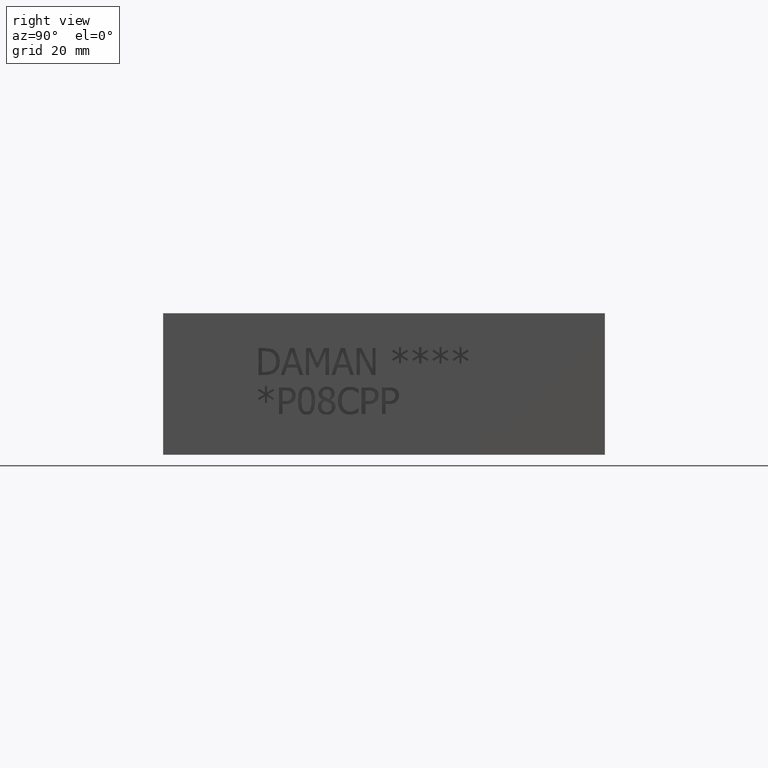
[diagram: clean part render]
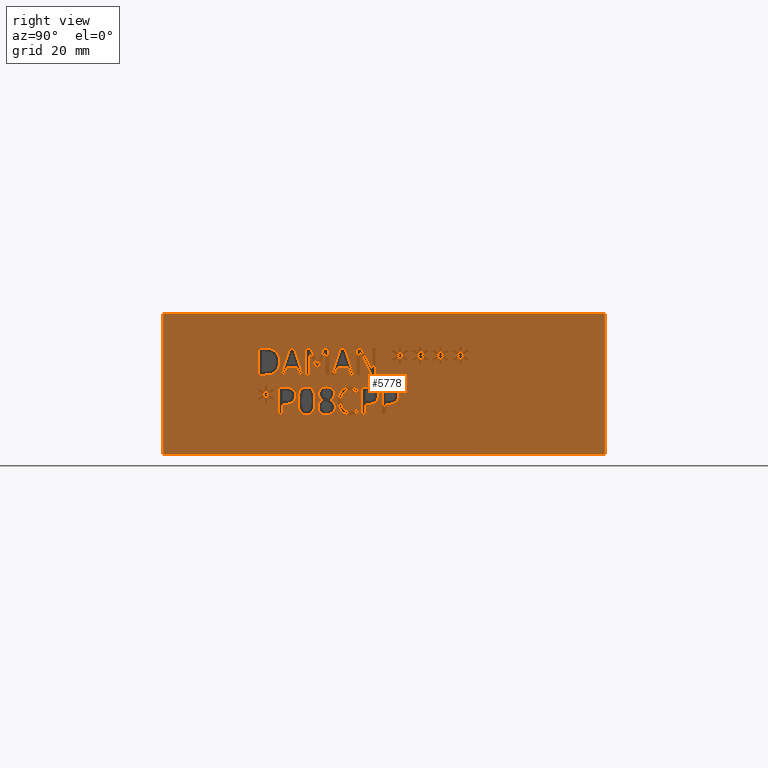
[diagram: same view with one face highlighted and labeled with its STEP entity id]
A machine part, right view. The second image highlights one B-rep face of the part: STEP entity #5778.
In plain terms, the highlighted planar face has unit normal (1, 0, 0).
Its self-contained STEP definition (entity closure, byte-faithful):
#68=FACE_BOUND('',#737,.T.);
#69=FACE_BOUND('',#738,.T.);
#70=FACE_BOUND('',#739,.T.);
#71=FACE_BOUND('',#740,.T.);
#72=FACE_BOUND('',#741,.T.);
#73=FACE_BOUND('',#742,.T.);
#74=FACE_BOUND('',#743,.T.);
#75=FACE_BOUND('',#744,.T.);
#76=FACE_BOUND('',#745,.T.);
#77=FACE_BOUND('',#746,.T.);
#78=FACE_BOUND('',#747,.T.);
#79=FACE_BOUND('',#748,.T.);
#80=FACE_BOUND('',#749,.T.);
#81=FACE_BOUND('',#750,.T.);
#82=FACE_BOUND('',#751,.T.);
#83=FACE_BOUND('',#752,.T.);
#156=PLANE('',#6018);
#433=FACE_OUTER_BOUND('',#736,.T.);
#736=EDGE_LOOP('',(#4281,#4282,#4283,#4284));
#737=EDGE_LOOP('',(#4285,#4286,#4287,#4288,#4289,#4290,#4291,#4292,#4293));
#738=EDGE_LOOP('',(#4294,#4295,#4296,#4297,#4298,#4299,#4300,#4301,#4302));
#739=EDGE_LOOP('',(#4303,#4304,#4305,#4306,#4307,#4308,#4309,#4310,#4311,
#4312,#4313));
#740=EDGE_LOOP('',(#4314,#4315,#4316,#4317));
#741=EDGE_LOOP('',(#4318,#4319,#4320,#4321,#4322,#4323,#4324,#4325,#4326));
#742=EDGE_LOOP('',(#4327,#4328,#4329,#4330,#4331,#4332,#4333,#4334,#4335,
#4336,#4337,#4338,#4339,#4340,#4341,#4342,#4343,#4344));
#743=EDGE_LOOP('',(#4345,#4346,#4347,#4348,#4349,#4350,#4351,#4352,#4353,
#4354,#4355,#4356,#4357,#4358,#4359,#4360,#4361,#4362,#4363,#4364));
#744=EDGE_LOOP('',(#4365,#4366,#4367,#4368,#4369,#4370,#4371,#4372,#4373,
#4374,#4375,#4376,#4377,#4378,#4379,#4380,#4381,#4382));
#745=EDGE_LOOP('',(#4383,#4384,#4385,#4386,#4387,#4388,#4389,#4390,#4391,
#4392,#4393,#4394,#4395,#4396,#4397,#4398,#4399,#4400));
#746=EDGE_LOOP('',(#4401,#4402,#4403,#4404,#4405,#4406,#4407,#4408,#4409,
#4410));
#747=EDGE_LOOP('',(#4411,#4412,#4413,#4414,#4415,#4416,#4417,#4418));
#748=EDGE_LOOP('',(#4419,#4420,#4421,#4422,#4423,#4424,#4425));
#749=EDGE_LOOP('',(#4426,#4427,#4428,#4429,#4430,#4431,#4432,#4433));
#750=EDGE_LOOP('',(#4434,#4435,#4436,#4437,#4438,#4439,#4440,#4441,#4442,
#4443,#4444,#4445,#4446));
#751=EDGE_LOOP('',(#4447,#4448,#4449,#4450,#4451,#4452,#4453,#4454,#4455,
#4456,#4457,#4458,#4459,#4460,#4461,#4462,#4463,#4464));
#752=EDGE_LOOP('',(#4465,#4466,#4467,#4468,#4469,#4470,#4471,#4472,#4473,
#4474,#4475,#4476,#4477,#4478,#4479,#4480,#4481,#4482));
#956=LINE('',#7481,#1572);
#959=LINE('',#7487,#1575);
#962=LINE('',#7493,#1578);
#965=LINE('',#7499,#1581);
#968=LINE('',#7505,#1584);
#988=LINE('',#7682,#1604);
#991=LINE('',#7688,#1607);
#994=LINE('',#7694,#1610);
#997=LINE('',#7700,#1613);
#1000=LINE('',#7706,#1616);
#1017=LINE('',#7979,#1633);
#1024=LINE('',#8061,#1640);
#1057=LINE('',#8486,#1673);
#1060=LINE('',#8492,#1676);
#1063=LINE('',#8498,#1679);
#1066=LINE('',#8504,#1682);
#1069=LINE('',#8510,#1685);
#1073=LINE('',#8553,#1689);
#1077=LINE('',#8561,#1693);
#1080=LINE('',#8567,#1696);
#1083=LINE('',#8573,#1699);
#1086=LINE('',#8579,#1702);
#1089=LINE('',#8585,#1705);
#1092=LINE('',#8591,#1708);
#1095=LINE('',#8597,#1711);
#1098=LINE('',#8603,#1714);
#1101=LINE('',#8609,#1717);
#1104=LINE('',#8615,#1720);
#1107=LINE('',#8621,#1723);
#1110=LINE('',#8627,#1726);
#1113=LINE('',#8633,#1729);
#1116=LINE('',#8639,#1732);
#1119=LINE('',#8645,#1735);
#1122=LINE('',#8651,#1738);
#1125=LINE('',#8656,#1741);
#1130=LINE('',#8702,#1746);
#1133=LINE('',#8708,#1749);
#1144=LINE('',#8866,#1760);
#1147=LINE('',#8872,#1763);
#1155=LINE('',#8991,#1771);
#1156=LINE('',#8993,#1772);
#1157=LINE('',#8995,#1773);
#1158=LINE('',#8996,#1774);
#1159=LINE('',#8999,#1775);
#1160=LINE('',#9001,#1776);
#1161=LINE('',#9003,#1777);
#1162=LINE('',#9005,#1778);
#1163=LINE('',#9007,#1779);
#1164=LINE('',#9009,#1780);
#1165=LINE('',#9011,#1781);
#1166=LINE('',#9013,#1782);
#1167=LINE('',#9015,#1783);
#1168=LINE('',#9017,#1784);
#1169=LINE('',#9019,#1785);
#1170=LINE('',#9021,#1786);
#1171=LINE('',#9023,#1787);
#1172=LINE('',#9025,#1788);
#1173=LINE('',#9027,#1789);
#1174=LINE('',#9029,#1790);
#1175=LINE('',#9031,#1791);
#1176=LINE('',#9032,#1792);
#1177=LINE('',#9035,#1793);
#1178=LINE('',#9037,#1794);
#1179=LINE('',#9039,#1795);
#1180=LINE('',#9041,#1796);
#1181=LINE('',#9043,#1797);
#1182=LINE('',#9045,#1798);
#1183=LINE('',#9047,#1799);
#1184=LINE('',#9049,#1800);
#1185=LINE('',#9051,#1801);
#1186=LINE('',#9053,#1802);
#1187=LINE('',#9055,#1803);
#1188=LINE('',#9057,#1804);
#1189=LINE('',#9059,#1805);
#1190=LINE('',#9061,#1806);
#1191=LINE('',#9063,#1807);
#1192=LINE('',#9065,#1808);
#1193=LINE('',#9067,#1809);
#1194=LINE('',#9068,#1810);
#1195=LINE('',#9071,#1811);
#1196=LINE('',#9073,#1812);
#1197=LINE('',#9075,#1813);
#1198=LINE('',#9077,#1814);
#1199=LINE('',#9079,#1815);
#1200=LINE('',#9081,#1816);
#1201=LINE('',#9083,#1817);
#1202=LINE('',#9085,#1818);
#1203=LINE('',#9087,#1819);
#1204=LINE('',#9088,#1820);
#1205=LINE('',#9091,#1821);
#1206=LINE('',#9093,#1822);
#1207=LINE('',#9095,#1823);
#1208=LINE('',#9097,#1824);
#1209=LINE('',#9099,#1825);
#1210=LINE('',#9101,#1826);
#1211=LINE('',#9103,#1827);
#1212=LINE('',#9104,#1828);
#1213=LINE('',#9122,#1829);
#1214=LINE('',#9124,#1830);
#1215=LINE('',#9126,#1831);
#1216=LINE('',#9133,#1832);
#1217=LINE('',#9135,#1833);
#1218=LINE('',#9137,#1834);
#1219=LINE('',#9139,#1835);
#1220=LINE('',#9141,#1836);
#1221=LINE('',#9143,#1837);
#1222=LINE('',#9145,#1838);
#1223=LINE('',#9146,#1839);
#1224=LINE('',#9149,#1840);
#1225=LINE('',#9151,#1841);
#1226=LINE('',#9153,#1842);
#1227=LINE('',#9155,#1843);
#1228=LINE('',#9157,#1844);
#1229=LINE('',#9159,#1845);
#1230=LINE('',#9161,#1846);
#1231=LINE('',#9163,#1847);
#1232=LINE('',#9165,#1848);
#1233=LINE('',#9167,#1849);
#1234=LINE('',#9169,#1850);
#1235=LINE('',#9171,#1851);
#1236=LINE('',#9172,#1852);
#1237=LINE('',#9175,#1853);
#1238=LINE('',#9177,#1854);
#1239=LINE('',#9179,#1855);
#1240=LINE('',#9181,#1856);
#1241=LINE('',#9183,#1857);
#1242=LINE('',#9185,#1858);
#1243=LINE('',#9187,#1859);
#1244=LINE('',#9189,#1860);
#1245=LINE('',#9191,#1861);
#1246=LINE('',#9193,#1862);
#1247=LINE('',#9195,#1863);
#1248=LINE('',#9197,#1864);
#1249=LINE('',#9199,#1865);
#1250=LINE('',#9201,#1866);
#1251=LINE('',#9203,#1867);
#1252=LINE('',#9205,#1868);
#1253=LINE('',#9207,#1869);
#1254=LINE('',#9208,#1870);
#1255=LINE('',#9211,#1871);
#1256=LINE('',#9213,#1872);
#1257=LINE('',#9215,#1873);
#1258=LINE('',#9217,#1874);
#1259=LINE('',#9219,#1875);
#1260=LINE('',#9221,#1876);
#1261=LINE('',#9223,#1877);
#1262=LINE('',#9225,#1878);
#1263=LINE('',#9227,#1879);
#1264=LINE('',#9229,#1880);
#1265=LINE('',#9231,#1881);
#1266=LINE('',#9233,#1882);
#1267=LINE('',#9235,#1883);
#1268=LINE('',#9237,#1884);
#1269=LINE('',#9239,#1885);
#1270=LINE('',#9241,#1886);
#1271=LINE('',#9243,#1887);
#1272=LINE('',#9244,#1888);
#1572=VECTOR('',#6243,10.);
#1575=VECTOR('',#6248,10.);
#1578=VECTOR('',#6253,10.);
#1581=VECTOR('',#6258,10.);
#1584=VECTOR('',#6263,10.);
#1604=VECTOR('',#6293,10.);
#1607=VECTOR('',#6298,10.);
#1610=VECTOR('',#6303,10.);
#1613=VECTOR('',#6308,10.);
#1616=VECTOR('',#6313,10.);
#1633=VECTOR('',#6334,10.);
#1640=VECTOR('',#6343,10.);
#1673=VECTOR('',#6388,10.);
#1676=VECTOR('',#6393,10.);
#1679=VECTOR('',#6398,10.);
#1682=VECTOR('',#6403,10.);
#1685=VECTOR('',#6408,10.);
#1689=VECTOR('',#6416,10.);
#1693=VECTOR('',#6422,10.);
#1696=VECTOR('',#6427,10.);
#1699=VECTOR('',#6432,10.);
#1702=VECTOR('',#6437,10.);
#1705=VECTOR('',#6442,10.);
#1708=VECTOR('',#6447,10.);
#1711=VECTOR('',#6452,10.);
#1714=VECTOR('',#6457,10.);
#1717=VECTOR('',#6462,10.);
#1720=VECTOR('',#6467,10.);
#1723=VECTOR('',#6472,10.);
#1726=VECTOR('',#6477,10.);
#1729=VECTOR('',#6482,10.);
#1732=VECTOR('',#6487,10.);
#1735=VECTOR('',#6492,10.);
#1738=VECTOR('',#6497,10.);
#1741=VECTOR('',#6502,10.);
#1746=VECTOR('',#6511,10.);
#1749=VECTOR('',#6516,10.);
#1760=VECTOR('',#6529,10.);
#1763=VECTOR('',#6534,10.);
#1771=VECTOR('',#6546,10.);
#1772=VECTOR('',#6547,10.);
#1773=VECTOR('',#6548,10.);
#1774=VECTOR('',#6549,10.);
#1775=VECTOR('',#6550,10.);
#1776=VECTOR('',#6551,10.);
#1777=VECTOR('',#6552,10.);
#1778=VECTOR('',#6553,10.);
#1779=VECTOR('',#6554,10.);
#1780=VECTOR('',#6555,10.);
#1781=VECTOR('',#6556,10.);
#1782=VECTOR('',#6557,10.);
#1783=VECTOR('',#6558,10.);
#1784=VECTOR('',#6559,10.);
#1785=VECTOR('',#6560,10.);
#1786=VECTOR('',#6561,10.);
#1787=VECTOR('',#6562,10.);
#1788=VECTOR('',#6563,10.);
#1789=VECTOR('',#6564,10.);
#1790=VECTOR('',#6565,10.);
#1791=VECTOR('',#6566,10.);
#1792=VECTOR('',#6567,10.);
#1793=VECTOR('',#6568,10.);
#1794=VECTOR('',#6569,10.);
#1795=VECTOR('',#6570,10.);
#1796=VECTOR('',#6571,10.);
#1797=VECTOR('',#6572,10.);
#1798=VECTOR('',#6573,10.);
#1799=VECTOR('',#6574,10.);
#1800=VECTOR('',#6575,10.);
#1801=VECTOR('',#6576,10.);
#1802=VECTOR('',#6577,10.);
#1803=VECTOR('',#6578,10.);
#1804=VECTOR('',#6579,10.);
#1805=VECTOR('',#6580,10.);
#1806=VECTOR('',#6581,10.);
#1807=VECTOR('',#6582,10.);
#1808=VECTOR('',#6583,10.);
#1809=VECTOR('',#6584,10.);
#1810=VECTOR('',#6585,10.);
#1811=VECTOR('',#6586,10.);
#1812=VECTOR('',#6587,10.);
#1813=VECTOR('',#6588,10.);
#1814=VECTOR('',#6589,10.);
#1815=VECTOR('',#6590,10.);
#1816=VECTOR('',#6591,10.);
#1817=VECTOR('',#6592,10.);
#1818=VECTOR('',#6593,10.);
#1819=VECTOR('',#6594,10.);
#1820=VECTOR('',#6595,10.);
#1821=VECTOR('',#6596,10.);
#1822=VECTOR('',#6597,10.);
#1823=VECTOR('',#6598,10.);
#1824=VECTOR('',#6599,10.);
#1825=VECTOR('',#6600,10.);
#1826=VECTOR('',#6601,10.);
#1827=VECTOR('',#6602,10.);
#1828=VECTOR('',#6603,10.);
#1829=VECTOR('',#6604,10.);
#1830=VECTOR('',#6605,10.);
#1831=VECTOR('',#6606,10.);
#1832=VECTOR('',#6607,10.);
#1833=VECTOR('',#6608,10.);
#1834=VECTOR('',#6609,10.);
#1835=VECTOR('',#6610,10.);
#1836=VECTOR('',#6611,10.);
#1837=VECTOR('',#6612,10.);
#1838=VECTOR('',#6613,10.);
#1839=VECTOR('',#6614,10.);
#1840=VECTOR('',#6615,10.);
#1841=VECTOR('',#6616,10.);
#1842=VECTOR('',#6617,10.);
#1843=VECTOR('',#6618,10.);
#1844=VECTOR('',#6619,10.);
#1845=VECTOR('',#6620,10.);
#1846=VECTOR('',#6621,10.);
#1847=VECTOR('',#6622,10.);
#1848=VECTOR('',#6623,10.);
#1849=VECTOR('',#6624,10.);
#1850=VECTOR('',#6625,10.);
#1851=VECTOR('',#6626,10.);
#1852=VECTOR('',#6627,10.);
#1853=VECTOR('',#6628,10.);
#1854=VECTOR('',#6629,10.);
#1855=VECTOR('',#6630,10.);
#1856=VECTOR('',#6631,10.);
#1857=VECTOR('',#6632,10.);
#1858=VECTOR('',#6633,10.);
#1859=VECTOR('',#6634,10.);
#1860=VECTOR('',#6635,10.);
#1861=VECTOR('',#6636,10.);
#1862=VECTOR('',#6637,10.);
#1863=VECTOR('',#6638,10.);
#1864=VECTOR('',#6639,10.);
#1865=VECTOR('',#6640,10.);
#1866=VECTOR('',#6641,10.);
#1867=VECTOR('',#6642,10.);
#1868=VECTOR('',#6643,10.);
#1869=VECTOR('',#6644,10.);
#1870=VECTOR('',#6645,10.);
#1871=VECTOR('',#6646,10.);
#1872=VECTOR('',#6647,10.);
#1873=VECTOR('',#6648,10.);
#1874=VECTOR('',#6649,10.);
#1875=VECTOR('',#6650,10.);
#1876=VECTOR('',#6651,10.);
#1877=VECTOR('',#6652,10.);
#1878=VECTOR('',#6653,10.);
#1879=VECTOR('',#6654,10.);
#1880=VECTOR('',#6655,10.);
#1881=VECTOR('',#6656,10.);
#1882=VECTOR('',#6657,10.);
#1883=VECTOR('',#6658,10.);
#1884=VECTOR('',#6659,10.);
#1885=VECTOR('',#6660,10.);
#1886=VECTOR('',#6661,10.);
#1887=VECTOR('',#6662,10.);
#1888=VECTOR('',#6663,10.);
#2180=B_SPLINE_CURVE_WITH_KNOTS('',2,(#7448,#7449,#7450,#7451),
 .UNSPECIFIED.,.F.,.F.,(3,1,3),(0.,1.,2.),.UNSPECIFIED.);
#2182=B_SPLINE_CURVE_WITH_KNOTS('',2,(#7469,#7470,#7471,#7472),
 .UNSPECIFIED.,.F.,.F.,(3,1,3),(0.,1.,2.),.UNSPECIFIED.);
#2184=B_SPLINE_CURVE_WITH_KNOTS('',2,(#7518,#7519,#7520,#7521),
 .UNSPECIFIED.,.F.,.F.,(3,1,3),(0.,1.,2.),.UNSPECIFIED.);
#2186=B_SPLINE_CURVE_WITH_KNOTS('',2,(#7536,#7537,#7538,#7539),
 .UNSPECIFIED.,.F.,.F.,(3,1,3),(0.,1.,2.),.UNSPECIFIED.);
#2196=B_SPLINE_CURVE_WITH_KNOTS('',2,(#7649,#7650,#7651,#7652),
 .UNSPECIFIED.,.F.,.F.,(3,1,3),(0.,1.,2.),.UNSPECIFIED.);
#2198=B_SPLINE_CURVE_WITH_KNOTS('',2,(#7670,#7671,#7672,#7673),
 .UNSPECIFIED.,.F.,.F.,(3,1,3),(0.,1.,2.),.UNSPECIFIED.);
#2200=B_SPLINE_CURVE_WITH_KNOTS('',2,(#7719,#7720,#7721,#7722),
 .UNSPECIFIED.,.F.,.F.,(3,1,3),(0.,1.,2.),.UNSPECIFIED.);
#2202=B_SPLINE_CURVE_WITH_KNOTS('',2,(#7737,#7738,#7739,#7740),
 .UNSPECIFIED.,.F.,.F.,(3,1,3),(0.,1.,2.),.UNSPECIFIED.);
#2224=B_SPLINE_CURVE_WITH_KNOTS('',2,(#7946,#7947,#7948,#7949),
 .UNSPECIFIED.,.F.,.F.,(3,1,3),(0.,1.,2.),.UNSPECIFIED.);
#2226=B_SPLINE_CURVE_WITH_KNOTS('',2,(#7967,#7968,#7969,#7970),
 .UNSPECIFIED.,.F.,.F.,(3,1,3),(0.,1.,2.),.UNSPECIFIED.);
#2228=B_SPLINE_CURVE_WITH_KNOTS('',2,(#7992,#7993,#7994,#7995),
 .UNSPECIFIED.,.F.,.F.,(3,1,3),(0.,1.,2.),.UNSPECIFIED.);
#2230=B_SPLINE_CURVE_WITH_KNOTS('',2,(#8011,#8012,#8013,#8014),
 .UNSPECIFIED.,.F.,.F.,(3,1,3),(0.,1.,2.),.UNSPECIFIED.);
#2232=B_SPLINE_CURVE_WITH_KNOTS('',2,(#8030,#8031,#8032,#8033),
 .UNSPECIFIED.,.F.,.F.,(3,1,3),(0.,1.,2.),.UNSPECIFIED.);
#2234=B_SPLINE_CURVE_WITH_KNOTS('',2,(#8049,#8050,#8051,#8052),
 .UNSPECIFIED.,.F.,.F.,(3,1,3),(0.,1.,2.),.UNSPECIFIED.);
#2236=B_SPLINE_CURVE_WITH_KNOTS('',2,(#8074,#8075,#8076,#8077),
 .UNSPECIFIED.,.F.,.F.,(3,1,3),(0.,1.,2.),.UNSPECIFIED.);
#2238=B_SPLINE_CURVE_WITH_KNOTS('',2,(#8093,#8094,#8095,#8096),
 .UNSPECIFIED.,.F.,.F.,(3,1,3),(0.,1.,2.),.UNSPECIFIED.);
#2240=B_SPLINE_CURVE_WITH_KNOTS('',2,(#8111,#8112,#8113,#8114),
 .UNSPECIFIED.,.F.,.F.,(3,1,3),(0.,1.,2.),.UNSPECIFIED.);
#2258=B_SPLINE_CURVE_WITH_KNOTS('',2,(#8282,#8283,#8284,#8285),
 .UNSPECIFIED.,.F.,.F.,(3,1,3),(0.,1.,2.),.UNSPECIFIED.);
#2260=B_SPLINE_CURVE_WITH_KNOTS('',2,(#8303,#8304,#8305,#8306),
 .UNSPECIFIED.,.F.,.F.,(3,1,3),(0.,1.,2.),.UNSPECIFIED.);
#2262=B_SPLINE_CURVE_WITH_KNOTS('',2,(#8322,#8323,#8324,#8325),
 .UNSPECIFIED.,.F.,.F.,(3,1,3),(0.,1.,2.),.UNSPECIFIED.);
#2264=B_SPLINE_CURVE_WITH_KNOTS('',2,(#8340,#8341,#8342,#8343),
 .UNSPECIFIED.,.F.,.F.,(3,1,3),(0.,1.,2.),.UNSPECIFIED.);
#2274=B_SPLINE_CURVE_WITH_KNOTS('',2,(#8453,#8454,#8455,#8456),
 .UNSPECIFIED.,.F.,.F.,(3,1,3),(0.,1.,2.),.UNSPECIFIED.);
#2276=B_SPLINE_CURVE_WITH_KNOTS('',2,(#8474,#8475,#8476,#8477),
 .UNSPECIFIED.,.F.,.F.,(3,1,3),(0.,1.,2.),.UNSPECIFIED.);
#2278=B_SPLINE_CURVE_WITH_KNOTS('',2,(#8523,#8524,#8525,#8526),
 .UNSPECIFIED.,.F.,.F.,(3,1,3),(0.,1.,2.),.UNSPECIFIED.);
#2280=B_SPLINE_CURVE_WITH_KNOTS('',2,(#8541,#8542,#8543,#8544),
 .UNSPECIFIED.,.F.,.F.,(3,1,3),(0.,1.,2.),.UNSPECIFIED.);
#2282=B_SPLINE_CURVE_WITH_KNOTS('',2,(#8669,#8670,#8671,#8672),
 .UNSPECIFIED.,.F.,.F.,(3,1,3),(0.,1.,2.),.UNSPECIFIED.);
#2284=B_SPLINE_CURVE_WITH_KNOTS('',2,(#8690,#8691,#8692,#8693),
 .UNSPECIFIED.,.F.,.F.,(3,1,3),(0.,1.,2.),.UNSPECIFIED.);
#2286=B_SPLINE_CURVE_WITH_KNOTS('',2,(#8721,#8722,#8723,#8724),
 .UNSPECIFIED.,.F.,.F.,(3,1,3),(0.,1.,2.),.UNSPECIFIED.);
#2288=B_SPLINE_CURVE_WITH_KNOTS('',2,(#8740,#8741,#8742,#8743),
 .UNSPECIFIED.,.F.,.F.,(3,1,3),(0.,1.,2.),.UNSPECIFIED.);
#2290=B_SPLINE_CURVE_WITH_KNOTS('',2,(#8759,#8760,#8761,#8762),
 .UNSPECIFIED.,.F.,.F.,(3,1,3),(0.,1.,2.),.UNSPECIFIED.);
#2292=B_SPLINE_CURVE_WITH_KNOTS('',2,(#8778,#8779,#8780,#8781),
 .UNSPECIFIED.,.F.,.F.,(3,1,3),(0.,1.,2.),.UNSPECIFIED.);
#2294=B_SPLINE_CURVE_WITH_KNOTS('',2,(#8797,#8798,#8799,#8800),
 .UNSPECIFIED.,.F.,.F.,(3,1,3),(0.,1.,2.),.UNSPECIFIED.);
#2296=B_SPLINE_CURVE_WITH_KNOTS('',2,(#8816,#8817,#8818,#8819),
 .UNSPECIFIED.,.F.,.F.,(3,1,3),(0.,1.,2.),.UNSPECIFIED.);
#2298=B_SPLINE_CURVE_WITH_KNOTS('',2,(#8835,#8836,#8837,#8838),
 .UNSPECIFIED.,.F.,.F.,(3,1,3),(0.,1.,2.),.UNSPECIFIED.);
#2300=B_SPLINE_CURVE_WITH_KNOTS('',2,(#8854,#8855,#8856,#8857),
 .UNSPECIFIED.,.F.,.F.,(3,1,3),(0.,1.,2.),.UNSPECIFIED.);
#2302=B_SPLINE_CURVE_WITH_KNOTS('',2,(#8885,#8886,#8887,#8888),
 .UNSPECIFIED.,.F.,.F.,(3,1,3),(0.,1.,2.),.UNSPECIFIED.);
#2304=B_SPLINE_CURVE_WITH_KNOTS('',2,(#8904,#8905,#8906,#8907),
 .UNSPECIFIED.,.F.,.F.,(3,1,3),(0.,1.,2.),.UNSPECIFIED.);
#2306=B_SPLINE_CURVE_WITH_KNOTS('',2,(#8923,#8924,#8925,#8926),
 .UNSPECIFIED.,.F.,.F.,(3,1,3),(0.,1.,2.),.UNSPECIFIED.);
#2308=B_SPLINE_CURVE_WITH_KNOTS('',2,(#8942,#8943,#8944,#8945),
 .UNSPECIFIED.,.F.,.F.,(3,1,3),(0.,1.,2.),.UNSPECIFIED.);
#2310=B_SPLINE_CURVE_WITH_KNOTS('',2,(#8961,#8962,#8963,#8964),
 .UNSPECIFIED.,.F.,.F.,(3,1,3),(0.,1.,2.),.UNSPECIFIED.);
#2312=B_SPLINE_CURVE_WITH_KNOTS('',2,(#8979,#8980,#8981,#8982),
 .UNSPECIFIED.,.F.,.F.,(3,1,3),(0.,1.,2.),.UNSPECIFIED.);
#2314=B_SPLINE_CURVE_WITH_KNOTS('',2,(#9107,#9108,#9109,#9110),
 .UNSPECIFIED.,.F.,.F.,(3,1,3),(0.,1.,2.),.UNSPECIFIED.);
#2315=B_SPLINE_CURVE_WITH_KNOTS('',2,(#9112,#9113,#9114,#9115),
 .UNSPECIFIED.,.F.,.F.,(3,1,3),(0.,1.,2.),.UNSPECIFIED.);
#2316=B_SPLINE_CURVE_WITH_KNOTS('',2,(#9117,#9118,#9119,#9120),
 .UNSPECIFIED.,.F.,.F.,(3,1,3),(0.,1.,2.),.UNSPECIFIED.);
#2317=B_SPLINE_CURVE_WITH_KNOTS('',2,(#9127,#9128,#9129,#9130),
 .UNSPECIFIED.,.F.,.F.,(3,1,3),(0.,1.,2.),.UNSPECIFIED.);
#2344=VERTEX_POINT('',#7446);
#2345=VERTEX_POINT('',#7447);
#2348=VERTEX_POINT('',#7468);
#2350=VERTEX_POINT('',#7480);
#2352=VERTEX_POINT('',#7486);
#2354=VERTEX_POINT('',#7492);
#2356=VERTEX_POINT('',#7498);
#2358=VERTEX_POINT('',#7504);
#2360=VERTEX_POINT('',#7517);
#2376=VERTEX_POINT('',#7647);
#2377=VERTEX_POINT('',#7648);
#2380=VERTEX_POINT('',#7669);
#2382=VERTEX_POINT('',#7681);
#2384=VERTEX_POINT('',#7687);
#2386=VERTEX_POINT('',#7693);
#2388=VERTEX_POINT('',#7699);
#2390=VERTEX_POINT('',#7705);
#2392=VERTEX_POINT('',#7718);
#2414=VERTEX_POINT('',#7944);
#2415=VERTEX_POINT('',#7945);
#2418=VERTEX_POINT('',#7966);
#2420=VERTEX_POINT('',#7978);
#2422=VERTEX_POINT('',#7991);
#2424=VERTEX_POINT('',#8010);
#2426=VERTEX_POINT('',#8029);
#2428=VERTEX_POINT('',#8048);
#2430=VERTEX_POINT('',#8060);
#2432=VERTEX_POINT('',#8073);
#2434=VERTEX_POINT('',#8092);
#2452=VERTEX_POINT('',#8280);
#2453=VERTEX_POINT('',#8281);
#2456=VERTEX_POINT('',#8302);
#2458=VERTEX_POINT('',#8321);
#2474=VERTEX_POINT('',#8451);
#2475=VERTEX_POINT('',#8452);
#2478=VERTEX_POINT('',#8473);
#2480=VERTEX_POINT('',#8485);
#2482=VERTEX_POINT('',#8491);
#2484=VERTEX_POINT('',#8497);
#2486=VERTEX_POINT('',#8503);
#2488=VERTEX_POINT('',#8509);
#2490=VERTEX_POINT('',#8522);
#2492=VERTEX_POINT('',#8551);
#2493=VERTEX_POINT('',#8552);
#2496=VERTEX_POINT('',#8560);
#2498=VERTEX_POINT('',#8566);
#2500=VERTEX_POINT('',#8572);
#2502=VERTEX_POINT('',#8578);
#2504=VERTEX_POINT('',#8584);
#2506=VERTEX_POINT('',#8590);
#2508=VERTEX_POINT('',#8596);
#2510=VERTEX_POINT('',#8602);
#2512=VERTEX_POINT('',#8608);
#2514=VERTEX_POINT('',#8614);
#2516=VERTEX_POINT('',#8620);
#2518=VERTEX_POINT('',#8626);
#2520=VERTEX_POINT('',#8632);
#2522=VERTEX_POINT('',#8638);
#2524=VERTEX_POINT('',#8644);
#2526=VERTEX_POINT('',#8650);
#2528=VERTEX_POINT('',#8667);
#2529=VERTEX_POINT('',#8668);
#2532=VERTEX_POINT('',#8689);
#2534=VERTEX_POINT('',#8701);
#2536=VERTEX_POINT('',#8707);
#2538=VERTEX_POINT('',#8720);
#2540=VERTEX_POINT('',#8739);
#2542=VERTEX_POINT('',#8758);
#2544=VERTEX_POINT('',#8777);
#2546=VERTEX_POINT('',#8796);
#2548=VERTEX_POINT('',#8815);
#2550=VERTEX_POINT('',#8834);
#2552=VERTEX_POINT('',#8853);
#2554=VERTEX_POINT('',#8865);
#2556=VERTEX_POINT('',#8871);
#2558=VERTEX_POINT('',#8884);
#2560=VERTEX_POINT('',#8903);
#2562=VERTEX_POINT('',#8922);
#2564=VERTEX_POINT('',#8941);
#2566=VERTEX_POINT('',#8960);
#2568=VERTEX_POINT('',#8989);
#2569=VERTEX_POINT('',#8990);
#2570=VERTEX_POINT('',#8992);
#2571=VERTEX_POINT('',#8994);
#2572=VERTEX_POINT('',#8997);
#2573=VERTEX_POINT('',#8998);
#2574=VERTEX_POINT('',#9000);
#2575=VERTEX_POINT('',#9002);
#2576=VERTEX_POINT('',#9004);
#2577=VERTEX_POINT('',#9006);
#2578=VERTEX_POINT('',#9008);
#2579=VERTEX_POINT('',#9010);
#2580=VERTEX_POINT('',#9012);
#2581=VERTEX_POINT('',#9014);
#2582=VERTEX_POINT('',#9016);
#2583=VERTEX_POINT('',#9018);
#2584=VERTEX_POINT('',#9020);
#2585=VERTEX_POINT('',#9022);
#2586=VERTEX_POINT('',#9024);
#2587=VERTEX_POINT('',#9026);
#2588=VERTEX_POINT('',#9028);
#2589=VERTEX_POINT('',#9030);
#2590=VERTEX_POINT('',#9033);
#2591=VERTEX_POINT('',#9034);
#2592=VERTEX_POINT('',#9036);
#2593=VERTEX_POINT('',#9038);
#2594=VERTEX_POINT('',#9040);
#2595=VERTEX_POINT('',#9042);
#2596=VERTEX_POINT('',#9044);
#2597=VERTEX_POINT('',#9046);
#2598=VERTEX_POINT('',#9048);
#2599=VERTEX_POINT('',#9050);
#2600=VERTEX_POINT('',#9052);
#2601=VERTEX_POINT('',#9054);
#2602=VERTEX_POINT('',#9056);
#2603=VERTEX_POINT('',#9058);
#2604=VERTEX_POINT('',#9060);
#2605=VERTEX_POINT('',#9062);
#2606=VERTEX_POINT('',#9064);
#2607=VERTEX_POINT('',#9066);
#2608=VERTEX_POINT('',#9069);
#2609=VERTEX_POINT('',#9070);
#2610=VERTEX_POINT('',#9072);
#2611=VERTEX_POINT('',#9074);
#2612=VERTEX_POINT('',#9076);
#2613=VERTEX_POINT('',#9078);
#2614=VERTEX_POINT('',#9080);
#2615=VERTEX_POINT('',#9082);
#2616=VERTEX_POINT('',#9084);
#2617=VERTEX_POINT('',#9086);
#2618=VERTEX_POINT('',#9089);
#2619=VERTEX_POINT('',#9090);
#2620=VERTEX_POINT('',#9092);
#2621=VERTEX_POINT('',#9094);
#2622=VERTEX_POINT('',#9096);
#2623=VERTEX_POINT('',#9098);
#2624=VERTEX_POINT('',#9100);
#2625=VERTEX_POINT('',#9102);
#2626=VERTEX_POINT('',#9105);
#2627=VERTEX_POINT('',#9106);
#2628=VERTEX_POINT('',#9111);
#2629=VERTEX_POINT('',#9116);
#2630=VERTEX_POINT('',#9121);
#2631=VERTEX_POINT('',#9123);
#2632=VERTEX_POINT('',#9125);
#2633=VERTEX_POINT('',#9131);
#2634=VERTEX_POINT('',#9132);
#2635=VERTEX_POINT('',#9134);
#2636=VERTEX_POINT('',#9136);
#2637=VERTEX_POINT('',#9138);
#2638=VERTEX_POINT('',#9140);
#2639=VERTEX_POINT('',#9142);
#2640=VERTEX_POINT('',#9144);
#2641=VERTEX_POINT('',#9147);
#2642=VERTEX_POINT('',#9148);
#2643=VERTEX_POINT('',#9150);
#2644=VERTEX_POINT('',#9152);
#2645=VERTEX_POINT('',#9154);
#2646=VERTEX_POINT('',#9156);
#2647=VERTEX_POINT('',#9158);
#2648=VERTEX_POINT('',#9160);
#2649=VERTEX_POINT('',#9162);
#2650=VERTEX_POINT('',#9164);
#2651=VERTEX_POINT('',#9166);
#2652=VERTEX_POINT('',#9168);
#2653=VERTEX_POINT('',#9170);
#2654=VERTEX_POINT('',#9173);
#2655=VERTEX_POINT('',#9174);
#2656=VERTEX_POINT('',#9176);
#2657=VERTEX_POINT('',#9178);
#2658=VERTEX_POINT('',#9180);
#2659=VERTEX_POINT('',#9182);
#2660=VERTEX_POINT('',#9184);
#2661=VERTEX_POINT('',#9186);
#2662=VERTEX_POINT('',#9188);
#2663=VERTEX_POINT('',#9190);
#2664=VERTEX_POINT('',#9192);
#2665=VERTEX_POINT('',#9194);
#2666=VERTEX_POINT('',#9196);
#2667=VERTEX_POINT('',#9198);
#2668=VERTEX_POINT('',#9200);
#2669=VERTEX_POINT('',#9202);
#2670=VERTEX_POINT('',#9204);
#2671=VERTEX_POINT('',#9206);
#2672=VERTEX_POINT('',#9209);
#2673=VERTEX_POINT('',#9210);
#2674=VERTEX_POINT('',#9212);
#2675=VERTEX_POINT('',#9214);
#2676=VERTEX_POINT('',#9216);
#2677=VERTEX_POINT('',#9218);
#2678=VERTEX_POINT('',#9220);
#2679=VERTEX_POINT('',#9222);
#2680=VERTEX_POINT('',#9224);
#2681=VERTEX_POINT('',#9226);
#2682=VERTEX_POINT('',#9228);
#2683=VERTEX_POINT('',#9230);
#2684=VERTEX_POINT('',#9232);
#2685=VERTEX_POINT('',#9234);
#2686=VERTEX_POINT('',#9236);
#2687=VERTEX_POINT('',#9238);
#2688=VERTEX_POINT('',#9240);
#2689=VERTEX_POINT('',#9242);
#2897=EDGE_CURVE('',#2344,#2345,#2180,.T.);
#2901=EDGE_CURVE('',#2348,#2344,#2182,.T.);
#2904=EDGE_CURVE('',#2350,#2348,#956,.T.);
#2907=EDGE_CURVE('',#2352,#2350,#959,.T.);
#2910=EDGE_CURVE('',#2354,#2352,#962,.T.);
#2913=EDGE_CURVE('',#2356,#2354,#965,.T.);
#2916=EDGE_CURVE('',#2358,#2356,#968,.T.);
#2919=EDGE_CURVE('',#2360,#2358,#2184,.T.);
#2922=EDGE_CURVE('',#2345,#2360,#2186,.T.);
#2945=EDGE_CURVE('',#2376,#2377,#2196,.T.);
#2949=EDGE_CURVE('',#2380,#2376,#2198,.T.);
#2952=EDGE_CURVE('',#2382,#2380,#988,.T.);
#2955=EDGE_CURVE('',#2384,#2382,#991,.T.);
#2958=EDGE_CURVE('',#2386,#2384,#994,.T.);
#2961=EDGE_CURVE('',#2388,#2386,#997,.T.);
#2964=EDGE_CURVE('',#2390,#2388,#1000,.T.);
#2967=EDGE_CURVE('',#2392,#2390,#2200,.T.);
#2970=EDGE_CURVE('',#2377,#2392,#2202,.T.);
#3002=EDGE_CURVE('',#2414,#2415,#2224,.T.);
#3006=EDGE_CURVE('',#2418,#2414,#2226,.T.);
#3009=EDGE_CURVE('',#2420,#2418,#1017,.T.);
#3012=EDGE_CURVE('',#2422,#2420,#2228,.T.);
#3015=EDGE_CURVE('',#2424,#2422,#2230,.T.);
#3018=EDGE_CURVE('',#2426,#2424,#2232,.T.);
#3021=EDGE_CURVE('',#2428,#2426,#2234,.T.);
#3024=EDGE_CURVE('',#2430,#2428,#1024,.T.);
#3027=EDGE_CURVE('',#2432,#2430,#2236,.T.);
#3030=EDGE_CURVE('',#2434,#2432,#2238,.T.);
#3033=EDGE_CURVE('',#2415,#2434,#2240,.T.);
#3059=EDGE_CURVE('',#2452,#2453,#2258,.T.);
#3063=EDGE_CURVE('',#2456,#2452,#2260,.T.);
#3066=EDGE_CURVE('',#2458,#2456,#2262,.T.);
#3069=EDGE_CURVE('',#2453,#2458,#2264,.T.);
#3092=EDGE_CURVE('',#2474,#2475,#2274,.T.);
#3096=EDGE_CURVE('',#2478,#2474,#2276,.T.);
#3099=EDGE_CURVE('',#2480,#2478,#1057,.T.);
#3102=EDGE_CURVE('',#2482,#2480,#1060,.T.);
#3105=EDGE_CURVE('',#2484,#2482,#1063,.T.);
#3108=EDGE_CURVE('',#2486,#2484,#1066,.T.);
#3111=EDGE_CURVE('',#2488,#2486,#1069,.T.);
#3114=EDGE_CURVE('',#2490,#2488,#2278,.T.);
#3117=EDGE_CURVE('',#2475,#2490,#2280,.T.);
#3119=EDGE_CURVE('',#2492,#2493,#1073,.T.);
#3123=EDGE_CURVE('',#2496,#2492,#1077,.T.);
#3126=EDGE_CURVE('',#2498,#2496,#1080,.T.);
#3129=EDGE_CURVE('',#2500,#2498,#1083,.T.);
#3132=EDGE_CURVE('',#2502,#2500,#1086,.T.);
#3135=EDGE_CURVE('',#2504,#2502,#1089,.T.);
#3138=EDGE_CURVE('',#2506,#2504,#1092,.T.);
#3141=EDGE_CURVE('',#2508,#2506,#1095,.T.);
#3144=EDGE_CURVE('',#2510,#2508,#1098,.T.);
#3147=EDGE_CURVE('',#2512,#2510,#1101,.T.);
#3150=EDGE_CURVE('',#2514,#2512,#1104,.T.);
#3153=EDGE_CURVE('',#2516,#2514,#1107,.T.);
#3156=EDGE_CURVE('',#2518,#2516,#1110,.T.);
#3159=EDGE_CURVE('',#2520,#2518,#1113,.T.);
#3162=EDGE_CURVE('',#2522,#2520,#1116,.T.);
#3165=EDGE_CURVE('',#2524,#2522,#1119,.T.);
#3168=EDGE_CURVE('',#2526,#2524,#1122,.T.);
#3171=EDGE_CURVE('',#2493,#2526,#1125,.T.);
#3173=EDGE_CURVE('',#2528,#2529,#2282,.T.);
#3177=EDGE_CURVE('',#2532,#2528,#2284,.T.);
#3180=EDGE_CURVE('',#2534,#2532,#1130,.T.);
#3183=EDGE_CURVE('',#2536,#2534,#1133,.T.);
#3186=EDGE_CURVE('',#2538,#2536,#2286,.T.);
#3189=EDGE_CURVE('',#2540,#2538,#2288,.T.);
#3192=EDGE_CURVE('',#2542,#2540,#2290,.T.);
#3195=EDGE_CURVE('',#2544,#2542,#2292,.T.);
#3198=EDGE_CURVE('',#2546,#2544,#2294,.T.);
#3201=EDGE_CURVE('',#2548,#2546,#2296,.T.);
#3204=EDGE_CURVE('',#2550,#2548,#2298,.T.);
#3207=EDGE_CURVE('',#2552,#2550,#2300,.T.);
#3210=EDGE_CURVE('',#2554,#2552,#1144,.T.);
#3213=EDGE_CURVE('',#2556,#2554,#1147,.T.);
#3216=EDGE_CURVE('',#2558,#2556,#2302,.T.);
#3219=EDGE_CURVE('',#2560,#2558,#2304,.T.);
#3222=EDGE_CURVE('',#2562,#2560,#2306,.T.);
#3225=EDGE_CURVE('',#2564,#2562,#2308,.T.);
#3228=EDGE_CURVE('',#2566,#2564,#2310,.T.);
#3231=EDGE_CURVE('',#2529,#2566,#2312,.T.);
#3233=EDGE_CURVE('',#2568,#2569,#1155,.T.);
#3234=EDGE_CURVE('',#2569,#2570,#1156,.T.);
#3235=EDGE_CURVE('',#2571,#2570,#1157,.T.);
#3236=EDGE_CURVE('',#2568,#2571,#1158,.T.);
#3237=EDGE_CURVE('',#2572,#2573,#1159,.T.);
#3238=EDGE_CURVE('',#2573,#2574,#1160,.T.);
#3239=EDGE_CURVE('',#2574,#2575,#1161,.T.);
#3240=EDGE_CURVE('',#2575,#2576,#1162,.T.);
#3241=EDGE_CURVE('',#2576,#2577,#1163,.T.);
#3242=EDGE_CURVE('',#2577,#2578,#1164,.T.);
#3243=EDGE_CURVE('',#2578,#2579,#1165,.T.);
#3244=EDGE_CURVE('',#2579,#2580,#1166,.T.);
#3245=EDGE_CURVE('',#2580,#2581,#1167,.T.);
#3246=EDGE_CURVE('',#2581,#2582,#1168,.T.);
#3247=EDGE_CURVE('',#2582,#2583,#1169,.T.);
#3248=EDGE_CURVE('',#2583,#2584,#1170,.T.);
#3249=EDGE_CURVE('',#2584,#2585,#1171,.T.);
#3250=EDGE_CURVE('',#2585,#2586,#1172,.T.);
#3251=EDGE_CURVE('',#2586,#2587,#1173,.T.);
#3252=EDGE_CURVE('',#2587,#2588,#1174,.T.);
#3253=EDGE_CURVE('',#2588,#2589,#1175,.T.);
#3254=EDGE_CURVE('',#2589,#2572,#1176,.T.);
#3255=EDGE_CURVE('',#2590,#2591,#1177,.T.);
#3256=EDGE_CURVE('',#2591,#2592,#1178,.T.);
#3257=EDGE_CURVE('',#2592,#2593,#1179,.T.);
#3258=EDGE_CURVE('',#2593,#2594,#1180,.T.);
#3259=EDGE_CURVE('',#2594,#2595,#1181,.T.);
#3260=EDGE_CURVE('',#2595,#2596,#1182,.T.);
#3261=EDGE_CURVE('',#2596,#2597,#1183,.T.);
#3262=EDGE_CURVE('',#2597,#2598,#1184,.T.);
#3263=EDGE_CURVE('',#2598,#2599,#1185,.T.);
#3264=EDGE_CURVE('',#2599,#2600,#1186,.T.);
#3265=EDGE_CURVE('',#2600,#2601,#1187,.T.);
#3266=EDGE_CURVE('',#2601,#2602,#1188,.T.);
#3267=EDGE_CURVE('',#2602,#2603,#1189,.T.);
#3268=EDGE_CURVE('',#2603,#2604,#1190,.T.);
#3269=EDGE_CURVE('',#2604,#2605,#1191,.T.);
#3270=EDGE_CURVE('',#2605,#2606,#1192,.T.);
#3271=EDGE_CURVE('',#2606,#2607,#1193,.T.);
#3272=EDGE_CURVE('',#2607,#2590,#1194,.T.);
#3273=EDGE_CURVE('',#2608,#2609,#1195,.T.);
#3274=EDGE_CURVE('',#2609,#2610,#1196,.T.);
#3275=EDGE_CURVE('',#2610,#2611,#1197,.T.);
#3276=EDGE_CURVE('',#2611,#2612,#1198,.T.);
#3277=EDGE_CURVE('',#2612,#2613,#1199,.T.);
#3278=EDGE_CURVE('',#2613,#2614,#1200,.T.);
#3279=EDGE_CURVE('',#2614,#2615,#1201,.T.);
#3280=EDGE_CURVE('',#2615,#2616,#1202,.T.);
#3281=EDGE_CURVE('',#2616,#2617,#1203,.T.);
#3282=EDGE_CURVE('',#2617,#2608,#1204,.T.);
#3283=EDGE_CURVE('',#2618,#2619,#1205,.T.);
#3284=EDGE_CURVE('',#2619,#2620,#1206,.T.);
#3285=EDGE_CURVE('',#2620,#2621,#1207,.T.);
#3286=EDGE_CURVE('',#2621,#2622,#1208,.T.);
#3287=EDGE_CURVE('',#2622,#2623,#1209,.T.);
#3288=EDGE_CURVE('',#2623,#2624,#1210,.T.);
#3289=EDGE_CURVE('',#2624,#2625,#1211,.T.);
#3290=EDGE_CURVE('',#2625,#2618,#1212,.T.);
#3291=EDGE_CURVE('',#2626,#2627,#2314,.T.);
#3292=EDGE_CURVE('',#2627,#2628,#2315,.T.);
#3293=EDGE_CURVE('',#2628,#2629,#2316,.T.);
#3294=EDGE_CURVE('',#2629,#2630,#1213,.T.);
#3295=EDGE_CURVE('',#2630,#2631,#1214,.T.);
#3296=EDGE_CURVE('',#2631,#2632,#1215,.T.);
#3297=EDGE_CURVE('',#2632,#2626,#2317,.T.);
#3298=EDGE_CURVE('',#2633,#2634,#1216,.T.);
#3299=EDGE_CURVE('',#2634,#2635,#1217,.T.);
#3300=EDGE_CURVE('',#2635,#2636,#1218,.T.);
#3301=EDGE_CURVE('',#2636,#2637,#1219,.T.);
#3302=EDGE_CURVE('',#2637,#2638,#1220,.T.);
#3303=EDGE_CURVE('',#2638,#2639,#1221,.T.);
#3304=EDGE_CURVE('',#2639,#2640,#1222,.T.);
#3305=EDGE_CURVE('',#2640,#2633,#1223,.T.);
#3306=EDGE_CURVE('',#2641,#2642,#1224,.T.);
#3307=EDGE_CURVE('',#2642,#2643,#1225,.T.);
#3308=EDGE_CURVE('',#2643,#2644,#1226,.T.);
#3309=EDGE_CURVE('',#2644,#2645,#1227,.T.);
#3310=EDGE_CURVE('',#2645,#2646,#1228,.T.);
#3311=EDGE_CURVE('',#2646,#2647,#1229,.T.);
#3312=EDGE_CURVE('',#2647,#2648,#1230,.T.);
#3313=EDGE_CURVE('',#2648,#2649,#1231,.T.);
#3314=EDGE_CURVE('',#2649,#2650,#1232,.T.);
#3315=EDGE_CURVE('',#2650,#2651,#1233,.T.);
#3316=EDGE_CURVE('',#2651,#2652,#1234,.T.);
#3317=EDGE_CURVE('',#2652,#2653,#1235,.T.);
#3318=EDGE_CURVE('',#2653,#2641,#1236,.T.);
#3319=EDGE_CURVE('',#2654,#2655,#1237,.T.);
#3320=EDGE_CURVE('',#2655,#2656,#1238,.T.);
#3321=EDGE_CURVE('',#2656,#2657,#1239,.T.);
#3322=EDGE_CURVE('',#2657,#2658,#1240,.T.);
#3323=EDGE_CURVE('',#2658,#2659,#1241,.T.);
#3324=EDGE_CURVE('',#2659,#2660,#1242,.T.);
#3325=EDGE_CURVE('',#2660,#2661,#1243,.T.);
#3326=EDGE_CURVE('',#2661,#2662,#1244,.T.);
#3327=EDGE_CURVE('',#2662,#2663,#1245,.T.);
#3328=EDGE_CURVE('',#2663,#2664,#1246,.T.);
#3329=EDGE_CURVE('',#2664,#2665,#1247,.T.);
#3330=EDGE_CURVE('',#2665,#2666,#1248,.T.);
#3331=EDGE_CURVE('',#2666,#2667,#1249,.T.);
#3332=EDGE_CURVE('',#2667,#2668,#1250,.T.);
#3333=EDGE_CURVE('',#2668,#2669,#1251,.T.);
#3334=EDGE_CURVE('',#2669,#2670,#1252,.T.);
#3335=EDGE_CURVE('',#2670,#2671,#1253,.T.);
#3336=EDGE_CURVE('',#2671,#2654,#1254,.T.);
#3337=EDGE_CURVE('',#2672,#2673,#1255,.T.);
#3338=EDGE_CURVE('',#2673,#2674,#1256,.T.);
#3339=EDGE_CURVE('',#2674,#2675,#1257,.T.);
#3340=EDGE_CURVE('',#2675,#2676,#1258,.T.);
#3341=EDGE_CURVE('',#2676,#2677,#1259,.T.);
#3342=EDGE_CURVE('',#2677,#2678,#1260,.T.);
#3343=EDGE_CURVE('',#2678,#2679,#1261,.T.);
#3344=EDGE_CURVE('',#2679,#2680,#1262,.T.);
#3345=EDGE_CURVE('',#2680,#2681,#1263,.T.);
#3346=EDGE_CURVE('',#2681,#2682,#1264,.T.);
#3347=EDGE_CURVE('',#2682,#2683,#1265,.T.);
#3348=EDGE_CURVE('',#2683,#2684,#1266,.T.);
#3349=EDGE_CURVE('',#2684,#2685,#1267,.T.);
#3350=EDGE_CURVE('',#2685,#2686,#1268,.T.);
#3351=EDGE_CURVE('',#2686,#2687,#1269,.T.);
#3352=EDGE_CURVE('',#2687,#2688,#1270,.T.);
#3353=EDGE_CURVE('',#2688,#2689,#1271,.T.);
#3354=EDGE_CURVE('',#2689,#2672,#1272,.T.);
#4281=ORIENTED_EDGE('',*,*,#3233,.T.);
#4282=ORIENTED_EDGE('',*,*,#3234,.T.);
#4283=ORIENTED_EDGE('',*,*,#3235,.F.);
#4284=ORIENTED_EDGE('',*,*,#3236,.F.);
#4285=ORIENTED_EDGE('',*,*,#2897,.T.);
#4286=ORIENTED_EDGE('',*,*,#2922,.T.);
#4287=ORIENTED_EDGE('',*,*,#2919,.T.);
#4288=ORIENTED_EDGE('',*,*,#2916,.T.);
#4289=ORIENTED_EDGE('',*,*,#2913,.T.);
#4290=ORIENTED_EDGE('',*,*,#2910,.T.);
#4291=ORIENTED_EDGE('',*,*,#2907,.T.);
#4292=ORIENTED_EDGE('',*,*,#2904,.T.);
#4293=ORIENTED_EDGE('',*,*,#2901,.T.);
#4294=ORIENTED_EDGE('',*,*,#2945,.T.);
#4295=ORIENTED_EDGE('',*,*,#2970,.T.);
#4296=ORIENTED_EDGE('',*,*,#2967,.T.);
#4297=ORIENTED_EDGE('',*,*,#2964,.T.);
#4298=ORIENTED_EDGE('',*,*,#2961,.T.);
#4299=ORIENTED_EDGE('',*,*,#2958,.T.);
#4300=ORIENTED_EDGE('',*,*,#2955,.T.);
#4301=ORIENTED_EDGE('',*,*,#2952,.T.);
#4302=ORIENTED_EDGE('',*,*,#2949,.T.);
#4303=ORIENTED_EDGE('',*,*,#3002,.T.);
#4304=ORIENTED_EDGE('',*,*,#3033,.T.);
#4305=ORIENTED_EDGE('',*,*,#3030,.T.);
#4306=ORIENTED_EDGE('',*,*,#3027,.T.);
#4307=ORIENTED_EDGE('',*,*,#3024,.T.);
#4308=ORIENTED_EDGE('',*,*,#3021,.T.);
#4309=ORIENTED_EDGE('',*,*,#3018,.T.);
#4310=ORIENTED_EDGE('',*,*,#3015,.T.);
#4311=ORIENTED_EDGE('',*,*,#3012,.T.);
#4312=ORIENTED_EDGE('',*,*,#3009,.T.);
#4313=ORIENTED_EDGE('',*,*,#3006,.T.);
#4314=ORIENTED_EDGE('',*,*,#3059,.T.);
#4315=ORIENTED_EDGE('',*,*,#3069,.T.);
#4316=ORIENTED_EDGE('',*,*,#3066,.T.);
#4317=ORIENTED_EDGE('',*,*,#3063,.T.);
#4318=ORIENTED_EDGE('',*,*,#3092,.T.);
#4319=ORIENTED_EDGE('',*,*,#3117,.T.);
#4320=ORIENTED_EDGE('',*,*,#3114,.T.);
#4321=ORIENTED_EDGE('',*,*,#3111,.T.);
#4322=ORIENTED_EDGE('',*,*,#3108,.T.);
#4323=ORIENTED_EDGE('',*,*,#3105,.T.);
#4324=ORIENTED_EDGE('',*,*,#3102,.T.);
#4325=ORIENTED_EDGE('',*,*,#3099,.T.);
#4326=ORIENTED_EDGE('',*,*,#3096,.T.);
#4327=ORIENTED_EDGE('',*,*,#3119,.T.);
#4328=ORIENTED_EDGE('',*,*,#3171,.T.);
#4329=ORIENTED_EDGE('',*,*,#3168,.T.);
#4330=ORIENTED_EDGE('',*,*,#3165,.T.);
#4331=ORIENTED_EDGE('',*,*,#3162,.T.);
#4332=ORIENTED_EDGE('',*,*,#3159,.T.);
#4333=ORIENTED_EDGE('',*,*,#3156,.T.);
#4334=ORIENTED_EDGE('',*,*,#3153,.T.);
#4335=ORIENTED_EDGE('',*,*,#3150,.T.);
#4336=ORIENTED_EDGE('',*,*,#3147,.T.);
#4337=ORIENTED_EDGE('',*,*,#3144,.T.);
#4338=ORIENTED_EDGE('',*,*,#3141,.T.);
#4339=ORIENTED_EDGE('',*,*,#3138,.T.);
#4340=ORIENTED_EDGE('',*,*,#3135,.T.);
#4341=ORIENTED_EDGE('',*,*,#3132,.T.);
#4342=ORIENTED_EDGE('',*,*,#3129,.T.);
#4343=ORIENTED_EDGE('',*,*,#3126,.T.);
#4344=ORIENTED_EDGE('',*,*,#3123,.T.);
#4345=ORIENTED_EDGE('',*,*,#3173,.T.);
#4346=ORIENTED_EDGE('',*,*,#3231,.T.);
#4347=ORIENTED_EDGE('',*,*,#3228,.T.);
#4348=ORIENTED_EDGE('',*,*,#3225,.T.);
#4349=ORIENTED_EDGE('',*,*,#3222,.T.);
#4350=ORIENTED_EDGE('',*,*,#3219,.T.);
#4351=ORIENTED_EDGE('',*,*,#3216,.T.);
#4352=ORIENTED_EDGE('',*,*,#3213,.T.);
#4353=ORIENTED_EDGE('',*,*,#3210,.T.);
#4354=ORIENTED_EDGE('',*,*,#3207,.T.);
#4355=ORIENTED_EDGE('',*,*,#3204,.T.);
#4356=ORIENTED_EDGE('',*,*,#3201,.T.);
#4357=ORIENTED_EDGE('',*,*,#3198,.T.);
#4358=ORIENTED_EDGE('',*,*,#3195,.T.);
#4359=ORIENTED_EDGE('',*,*,#3192,.T.);
#4360=ORIENTED_EDGE('',*,*,#3189,.T.);
#4361=ORIENTED_EDGE('',*,*,#3186,.T.);
#4362=ORIENTED_EDGE('',*,*,#3183,.T.);
#4363=ORIENTED_EDGE('',*,*,#3180,.T.);
#4364=ORIENTED_EDGE('',*,*,#3177,.T.);
#4365=ORIENTED_EDGE('',*,*,#3237,.T.);
#4366=ORIENTED_EDGE('',*,*,#3238,.T.);
#4367=ORIENTED_EDGE('',*,*,#3239,.T.);
#4368=ORIENTED_EDGE('',*,*,#3240,.T.);
#4369=ORIENTED_EDGE('',*,*,#3241,.T.);
#4370=ORIENTED_EDGE('',*,*,#3242,.T.);
#4371=ORIENTED_EDGE('',*,*,#3243,.T.);
#4372=ORIENTED_EDGE('',*,*,#3244,.T.);
#4373=ORIENTED_EDGE('',*,*,#3245,.T.);
#4374=ORIENTED_EDGE('',*,*,#3246,.T.);
#4375=ORIENTED_EDGE('',*,*,#3247,.T.);
#4376=ORIENTED_EDGE('',*,*,#3248,.T.);
#4377=ORIENTED_EDGE('',*,*,#3249,.T.);
#4378=ORIENTED_EDGE('',*,*,#3250,.T.);
#4379=ORIENTED_EDGE('',*,*,#3251,.T.);
#4380=ORIENTED_EDGE('',*,*,#3252,.T.);
#4381=ORIENTED_EDGE('',*,*,#3253,.T.);
#4382=ORIENTED_EDGE('',*,*,#3254,.T.);
#4383=ORIENTED_EDGE('',*,*,#3255,.T.);
#4384=ORIENTED_EDGE('',*,*,#3256,.T.);
#4385=ORIENTED_EDGE('',*,*,#3257,.T.);
#4386=ORIENTED_EDGE('',*,*,#3258,.T.);
#4387=ORIENTED_EDGE('',*,*,#3259,.T.);
#4388=ORIENTED_EDGE('',*,*,#3260,.T.);
#4389=ORIENTED_EDGE('',*,*,#3261,.T.);
#4390=ORIENTED_EDGE('',*,*,#3262,.T.);
#4391=ORIENTED_EDGE('',*,*,#3263,.T.);
#4392=ORIENTED_EDGE('',*,*,#3264,.T.);
#4393=ORIENTED_EDGE('',*,*,#3265,.T.);
#4394=ORIENTED_EDGE('',*,*,#3266,.T.);
#4395=ORIENTED_EDGE('',*,*,#3267,.T.);
#4396=ORIENTED_EDGE('',*,*,#3268,.T.);
#4397=ORIENTED_EDGE('',*,*,#3269,.T.);
#4398=ORIENTED_EDGE('',*,*,#3270,.T.);
#4399=ORIENTED_EDGE('',*,*,#3271,.T.);
#4400=ORIENTED_EDGE('',*,*,#3272,.T.);
#4401=ORIENTED_EDGE('',*,*,#3273,.T.);
#4402=ORIENTED_EDGE('',*,*,#3274,.T.);
#4403=ORIENTED_EDGE('',*,*,#3275,.T.);
#4404=ORIENTED_EDGE('',*,*,#3276,.T.);
#4405=ORIENTED_EDGE('',*,*,#3277,.T.);
#4406=ORIENTED_EDGE('',*,*,#3278,.T.);
#4407=ORIENTED_EDGE('',*,*,#3279,.T.);
#4408=ORIENTED_EDGE('',*,*,#3280,.T.);
#4409=ORIENTED_EDGE('',*,*,#3281,.T.);
#4410=ORIENTED_EDGE('',*,*,#3282,.T.);
#4411=ORIENTED_EDGE('',*,*,#3283,.T.);
#4412=ORIENTED_EDGE('',*,*,#3284,.T.);
#4413=ORIENTED_EDGE('',*,*,#3285,.T.);
#4414=ORIENTED_EDGE('',*,*,#3286,.T.);
#4415=ORIENTED_EDGE('',*,*,#3287,.T.);
#4416=ORIENTED_EDGE('',*,*,#3288,.T.);
#4417=ORIENTED_EDGE('',*,*,#3289,.T.);
#4418=ORIENTED_EDGE('',*,*,#3290,.T.);
#4419=ORIENTED_EDGE('',*,*,#3291,.T.);
#4420=ORIENTED_EDGE('',*,*,#3292,.T.);
#4421=ORIENTED_EDGE('',*,*,#3293,.T.);
#4422=ORIENTED_EDGE('',*,*,#3294,.T.);
#4423=ORIENTED_EDGE('',*,*,#3295,.T.);
#4424=ORIENTED_EDGE('',*,*,#3296,.T.);
#4425=ORIENTED_EDGE('',*,*,#3297,.T.);
#4426=ORIENTED_EDGE('',*,*,#3298,.T.);
#4427=ORIENTED_EDGE('',*,*,#3299,.T.);
#4428=ORIENTED_EDGE('',*,*,#3300,.T.);
#4429=ORIENTED_EDGE('',*,*,#3301,.T.);
#4430=ORIENTED_EDGE('',*,*,#3302,.T.);
#4431=ORIENTED_EDGE('',*,*,#3303,.T.);
#4432=ORIENTED_EDGE('',*,*,#3304,.T.);
#4433=ORIENTED_EDGE('',*,*,#3305,.T.);
#4434=ORIENTED_EDGE('',*,*,#3306,.T.);
#4435=ORIENTED_EDGE('',*,*,#3307,.T.);
#4436=ORIENTED_EDGE('',*,*,#3308,.T.);
#4437=ORIENTED_EDGE('',*,*,#3309,.T.);
#4438=ORIENTED_EDGE('',*,*,#3310,.T.);
#4439=ORIENTED_EDGE('',*,*,#3311,.T.);
#4440=ORIENTED_EDGE('',*,*,#3312,.T.);
#4441=ORIENTED_EDGE('',*,*,#3313,.T.);
#4442=ORIENTED_EDGE('',*,*,#3314,.T.);
#4443=ORIENTED_EDGE('',*,*,#3315,.T.);
#4444=ORIENTED_EDGE('',*,*,#3316,.T.);
#4445=ORIENTED_EDGE('',*,*,#3317,.T.);
#4446=ORIENTED_EDGE('',*,*,#3318,.T.);
#4447=ORIENTED_EDGE('',*,*,#3319,.T.);
#4448=ORIENTED_EDGE('',*,*,#3320,.T.);
#4449=ORIENTED_EDGE('',*,*,#3321,.T.);
#4450=ORIENTED_EDGE('',*,*,#3322,.T.);
#4451=ORIENTED_EDGE('',*,*,#3323,.T.);
#4452=ORIENTED_EDGE('',*,*,#3324,.T.);
#4453=ORIENTED_EDGE('',*,*,#3325,.T.);
#4454=ORIENTED_EDGE('',*,*,#3326,.T.);
#4455=ORIENTED_EDGE('',*,*,#3327,.T.);
#4456=ORIENTED_EDGE('',*,*,#3328,.T.);
#4457=ORIENTED_EDGE('',*,*,#3329,.T.);
#4458=ORIENTED_EDGE('',*,*,#3330,.T.);
#4459=ORIENTED_EDGE('',*,*,#3331,.T.);
#4460=ORIENTED_EDGE('',*,*,#3332,.T.);
#4461=ORIENTED_EDGE('',*,*,#3333,.T.);
#4462=ORIENTED_EDGE('',*,*,#3334,.T.);
#4463=ORIENTED_EDGE('',*,*,#3335,.T.);
#4464=ORIENTED_EDGE('',*,*,#3336,.T.);
#4465=ORIENTED_EDGE('',*,*,#3337,.T.);
#4466=ORIENTED_EDGE('',*,*,#3338,.T.);
#4467=ORIENTED_EDGE('',*,*,#3339,.T.);
#4468=ORIENTED_EDGE('',*,*,#3340,.T.);
#4469=ORIENTED_EDGE('',*,*,#3341,.T.);
#4470=ORIENTED_EDGE('',*,*,#3342,.T.);
#4471=ORIENTED_EDGE('',*,*,#3343,.T.);
#4472=ORIENTED_EDGE('',*,*,#3344,.T.);
#4473=ORIENTED_EDGE('',*,*,#3345,.T.);
#4474=ORIENTED_EDGE('',*,*,#3346,.T.);
#4475=ORIENTED_EDGE('',*,*,#3347,.T.);
#4476=ORIENTED_EDGE('',*,*,#3348,.T.);
#4477=ORIENTED_EDGE('',*,*,#3349,.T.);
#4478=ORIENTED_EDGE('',*,*,#3350,.T.);
#4479=ORIENTED_EDGE('',*,*,#3351,.T.);
#4480=ORIENTED_EDGE('',*,*,#3352,.T.);
#4481=ORIENTED_EDGE('',*,*,#3353,.T.);
#4482=ORIENTED_EDGE('',*,*,#3354,.T.);
#5778=ADVANCED_FACE('',(#433,#68,#69,#70,#71,#72,#73,#74,#75,#76,#77,#78,
#79,#80,#81,#82,#83),#156,.T.);
#6018=AXIS2_PLACEMENT_3D('',#8988,#6544,#6545);
#6243=DIRECTION('',(0.,1.,0.));
#6248=DIRECTION('',(0.,0.,1.));
#6253=DIRECTION('',(0.,-1.,0.));
#6258=DIRECTION('',(0.,0.,-1.));
#6263=DIRECTION('',(0.,-1.,0.));
#6293=DIRECTION('',(0.,1.,0.));
#6298=DIRECTION('',(0.,0.,1.));
#6303=DIRECTION('',(0.,-1.,0.));
#6308=DIRECTION('',(0.,0.,-1.));
#6313=DIRECTION('',(0.,-1.,0.));
#6334=DIRECTION('',(0.,0.,-1.));
#6343=DIRECTION('',(0.,0.,1.));
#6388=DIRECTION('',(0.,1.,0.));
#6393=DIRECTION('',(0.,0.,1.));
#6398=DIRECTION('',(0.,-1.,0.));
#6403=DIRECTION('',(0.,0.,-1.));
#6408=DIRECTION('',(0.,-1.,0.));
#6416=DIRECTION('',(0.,0.863671970566992,-0.504054289989609));
#6422=DIRECTION('',(0.,-0.864954307083121,-0.5018506218571));
#6427=DIRECTION('',(0.,0.510320389620597,-0.859984360286559));
#6432=DIRECTION('',(0.,0.83393220572654,0.551866900848446));
#6437=DIRECTION('',(0.,-0.0231725839648085,-0.999731479624601));
#6442=DIRECTION('',(0.,1.,0.));
#6447=DIRECTION('',(0.,-0.0198636297743479,0.999802698642181));
#6452=DIRECTION('',(0.,0.83062769207368,-0.556828193575319));
#6457=DIRECTION('',(0.,0.517259170391717,0.855828809193564));
#6462=DIRECTION('',(0.,-0.863671970566992,0.504054289989609));
#6467=DIRECTION('',(0.,0.862387849576918,0.506248157430818));
#6472=DIRECTION('',(0.,-0.517259170391714,0.855828809193565));
#6477=DIRECTION('',(0.,-0.829670163866862,-0.558253902081422));
#6482=DIRECTION('',(0.,0.0165540227281047,0.999862972777529));
#6487=DIRECTION('',(0.,-1.,0.));
#6492=DIRECTION('',(0.,0.0198636297743478,-0.999802698642181));
#6497=DIRECTION('',(0.,-0.832994863913618,0.553280721418641));
#6502=DIRECTION('',(0.,-0.510320389620595,-0.85998436028656));
#6511=DIRECTION('',(0.,0.,-1.));
#6516=DIRECTION('',(0.,1.,0.));
#6529=DIRECTION('',(0.,-1.,0.));
#6534=DIRECTION('',(0.,0.,-1.));
#6544=DIRECTION('center_axis',(1.,0.,0.));
#6545=DIRECTION('ref_axis',(0.,1.,0.));
#6546=DIRECTION('',(0.,1.,0.));
#6547=DIRECTION('',(0.,0.,1.));
#6548=DIRECTION('',(0.,1.,0.));
#6549=DIRECTION('',(0.,0.,1.));
#6550=DIRECTION('',(0.,0.863671970566992,-0.504054289989609));
#6551=DIRECTION('',(0.,-0.510320389620591,-0.859984360286562));
#6552=DIRECTION('',(0.,-0.832994863913619,0.553280721418641));
#6553=DIRECTION('',(0.,0.0198636297743478,-0.999802698642181));
#6554=DIRECTION('',(0.,-1.,0.));
#6555=DIRECTION('',(0.,0.0165540227281047,0.999862972777529));
#6556=DIRECTION('',(0.,-0.829670163866863,-0.558253902081421));
#6557=DIRECTION('',(0.,-0.51725917039171,0.855828809193567));
#6558=DIRECTION('',(0.,0.862387849576918,0.506248157430818));
#6559=DIRECTION('',(0.,-0.863671970566992,0.504054289989609));
#6560=DIRECTION('',(0.,0.517259170391712,0.855828809193566));
#6561=DIRECTION('',(0.,0.83062769207368,-0.556828193575318));
#6562=DIRECTION('',(0.,-0.0198636297743479,0.999802698642181));
#6563=DIRECTION('',(0.,1.,0.));
#6564=DIRECTION('',(0.,-0.0231725839648085,-0.999731479624601));
#6565=DIRECTION('',(0.,0.83393220572654,0.551866900848445));
#6566=DIRECTION('',(0.,0.510320389620593,-0.859984360286561));
#6567=DIRECTION('',(0.,-0.864954307083121,-0.5018506218571));
#6568=DIRECTION('',(0.,0.863671970566992,-0.504054289989609));
#6569=DIRECTION('',(0.,-0.510320389620591,-0.859984360286562));
#6570=DIRECTION('',(0.,-0.832994863913619,0.553280721418641));
#6571=DIRECTION('',(0.,0.0198636297743478,-0.999802698642181));
#6572=DIRECTION('',(0.,-1.,0.));
#6573=DIRECTION('',(0.,0.0165540227281047,0.999862972777529));
#6574=DIRECTION('',(0.,-0.829670163866863,-0.558253902081421));
#6575=DIRECTION('',(0.,-0.51725917039171,0.855828809193567));
#6576=DIRECTION('',(0.,0.862387849576918,0.506248157430818));
#6577=DIRECTION('',(0.,-0.863671970566992,0.504054289989609));
#6578=DIRECTION('',(0.,0.517259170391712,0.855828809193566));
#6579=DIRECTION('',(0.,0.83062769207368,-0.556828193575318));
#6580=DIRECTION('',(0.,-0.0198636297743479,0.999802698642181));
#6581=DIRECTION('',(0.,1.,0.));
#6582=DIRECTION('',(0.,-0.0231725839648085,-0.999731479624601));
#6583=DIRECTION('',(0.,0.83393220572654,0.551866900848445));
#6584=DIRECTION('',(0.,0.510320389620593,-0.859984360286561));
#6585=DIRECTION('',(0.,-0.864954307083121,-0.5018506218571));
#6586=DIRECTION('',(0.,0.,-1.));
#6587=DIRECTION('',(0.,-1.,0.));
#6588=DIRECTION('',(0.,-0.456554296231786,0.889695551631174));
#6589=DIRECTION('',(0.,0.,-1.));
#6590=DIRECTION('',(0.,-1.,0.));
#6591=DIRECTION('',(0.,0.,1.));
#6592=DIRECTION('',(0.,1.,0.));
#6593=DIRECTION('',(0.,0.45340638691382,-0.891303903450308));
#6594=DIRECTION('',(0.,0.,1.));
#6595=DIRECTION('',(0.,1.,0.));
#6596=DIRECTION('',(0.,-1.,0.));
#6597=DIRECTION('',(0.,0.319451166674568,0.947602739606771));
#6598=DIRECTION('',(0.,1.,0.));
#6599=DIRECTION('',(0.,0.319451166674568,-0.947602739606771));
#6600=DIRECTION('',(0.,-1.,0.));
#6601=DIRECTION('',(0.,-0.308774363938382,0.951135317488762));
#6602=DIRECTION('',(0.,-1.,0.));
#6603=DIRECTION('',(0.,-0.308774363938382,-0.951135317488762));
#6604=DIRECTION('',(0.,-1.,0.));
#6605=DIRECTION('',(0.,0.,1.));
#6606=DIRECTION('',(0.,1.,0.));
#6607=DIRECTION('',(0.,-1.,0.));
#6608=DIRECTION('',(0.,0.319451166674568,0.947602739606771));
#6609=DIRECTION('',(0.,1.,0.));
#6610=DIRECTION('',(0.,0.319451166674568,-0.947602739606771));
#6611=DIRECTION('',(0.,-1.,0.));
#6612=DIRECTION('',(0.,-0.308774363938382,0.951135317488762));
#6613=DIRECTION('',(0.,-1.,0.));
#6614=DIRECTION('',(0.,-0.308774363938382,-0.951135317488762));
#6615=DIRECTION('',(0.,0.,-1.));
#6616=DIRECTION('',(0.,-1.,0.));
#6617=DIRECTION('',(0.,0.,1.));
#6618=DIRECTION('',(0.,-0.406841728378542,-0.913498663408962));
#6619=DIRECTION('',(0.,-1.,0.));
#6620=DIRECTION('',(0.,-0.403671360964848,0.914904056356068));
#6621=DIRECTION('',(0.,0.,-1.));
#6622=DIRECTION('',(0.,-1.,0.));
#6623=DIRECTION('',(0.,0.,1.));
#6624=DIRECTION('',(0.,1.,0.));
#6625=DIRECTION('',(0.,0.409094040958196,-0.912492227721691));
#6626=DIRECTION('',(0.,0.397944692264712,0.917409408006231));
#6627=DIRECTION('',(0.,1.,0.));
#6628=DIRECTION('',(0.,0.863671970566992,-0.504054289989609));
#6629=DIRECTION('',(0.,-0.510320389620607,-0.859984360286553));
#6630=DIRECTION('',(0.,-0.832994863913617,0.553280721418644));
#6631=DIRECTION('',(0.,0.0198636297743478,-0.999802698642181));
#6632=DIRECTION('',(0.,-1.,0.));
#6633=DIRECTION('',(0.,0.0165540227281047,0.999862972777529));
#6634=DIRECTION('',(0.,-0.829670163866863,-0.558253902081421));
#6635=DIRECTION('',(0.,-0.51725917039171,0.855828809193567));
#6636=DIRECTION('',(0.,0.862387849576918,0.506248157430818));
#6637=DIRECTION('',(0.,-0.863671970566992,0.504054289989609));
#6638=DIRECTION('',(0.,0.517259170391712,0.855828809193566));
#6639=DIRECTION('',(0.,0.83062769207368,-0.556828193575318));
#6640=DIRECTION('',(0.,-0.0198636297743479,0.999802698642181));
#6641=DIRECTION('',(0.,1.,0.));
#6642=DIRECTION('',(0.,-0.0231725839648085,-0.999731479624601));
#6643=DIRECTION('',(0.,0.833932205726538,0.551866900848448));
#6644=DIRECTION('',(0.,0.510320389620609,-0.859984360286552));
#6645=DIRECTION('',(0.,-0.864954307083121,-0.5018506218571));
#6646=DIRECTION('',(0.,0.863671970566992,-0.504054289989609));
#6647=DIRECTION('',(0.,-0.510320389620607,-0.859984360286553));
#6648=DIRECTION('',(0.,-0.832994863913617,0.553280721418644));
#6649=DIRECTION('',(0.,0.0198636297743478,-0.999802698642181));
#6650=DIRECTION('',(0.,-1.,0.));
#6651=DIRECTION('',(0.,0.0165540227281047,0.999862972777529));
#6652=DIRECTION('',(0.,-0.829670163866863,-0.558253902081421));
#6653=DIRECTION('',(0.,-0.51725917039171,0.855828809193567));
#6654=DIRECTION('',(0.,0.862387849576918,0.506248157430818));
#6655=DIRECTION('',(0.,-0.863671970566992,0.504054289989609));
#6656=DIRECTION('',(0.,0.517259170391712,0.855828809193566));
#6657=DIRECTION('',(0.,0.83062769207368,-0.556828193575318));
#6658=DIRECTION('',(0.,-0.0198636297743479,0.999802698642181));
#6659=DIRECTION('',(0.,1.,0.));
#6660=DIRECTION('',(0.,-0.0231725839648085,-0.999731479624601));
#6661=DIRECTION('',(0.,0.833932205726538,0.551866900848448));
#6662=DIRECTION('',(0.,0.510320389620609,-0.859984360286552));
#6663=DIRECTION('',(0.,-0.864954307083121,-0.5018506218571));
#7446=CARTESIAN_POINT('',(101.6,41.8038409430455,11.778117941518));
#7447=CARTESIAN_POINT('',(101.6,42.3787372194774,10.6244145296309));
#7448=CARTESIAN_POINT('Ctrl Pts',(101.6,41.8038409430455,11.778117941518));
#7449=CARTESIAN_POINT('Ctrl Pts',(101.6,42.0736902156564,11.5943075674207));
#7450=CARTESIAN_POINT('Ctrl Pts',(101.6,42.3787372194774,11.0272330090355));
#7451=CARTESIAN_POINT('Ctrl Pts',(101.6,42.3787372194774,10.6244145296309));
#7468=CARTESIAN_POINT('',(101.6,40.5406334785047,12.0792540863156));
#7469=CARTESIAN_POINT('Ctrl Pts',(101.6,40.5406334785047,12.0792540863156));
#7470=CARTESIAN_POINT('Ctrl Pts',(101.6,40.9708279710728,12.0792540863156));
#7471=CARTESIAN_POINT('Ctrl Pts',(101.6,41.5731002606681,11.9384631614752));
#7472=CARTESIAN_POINT('Ctrl Pts',(101.6,41.8038409430455,11.778117941518));
#7480=CARTESIAN_POINT('',(101.6,39.3282671812674,12.0792540863156));
#7481=CARTESIAN_POINT('',(101.6,19.6641335906337,12.0792540863156));
#7486=CARTESIAN_POINT('',(101.6,39.3282671812674,7.25325405150652));
#7487=CARTESIAN_POINT('',(101.6,39.3282671812674,3.62662702575326));
#7492=CARTESIAN_POINT('',(101.6,39.9696480610962,7.25325405150652));
#7493=CARTESIAN_POINT('',(101.6,19.9848240305481,7.25325405150652));
#7498=CARTESIAN_POINT('',(101.6,39.9696480610962,9.05224920224573));
#7499=CARTESIAN_POINT('',(101.6,39.9696480610962,4.52612460112287));
#7504=CARTESIAN_POINT('',(101.6,40.5132574653413,9.05224920224573));
#7505=CARTESIAN_POINT('',(101.6,20.2566287326706,9.05224920224573));
#7517=CARTESIAN_POINT('',(101.6,41.956364444956,9.55283915723404));
#7518=CARTESIAN_POINT('Ctrl Pts',(101.6,41.956364444956,9.55283915723404));
#7519=CARTESIAN_POINT('Ctrl Pts',(101.6,41.7060694674619,9.30645503876323));
#7520=CARTESIAN_POINT('Ctrl Pts',(101.6,41.029490856423,9.05224920224573));
#7521=CARTESIAN_POINT('Ctrl Pts',(101.6,40.5132574653413,9.05224920224573));
#7536=CARTESIAN_POINT('Ctrl Pts',(101.6,42.3787372194774,10.6244145296309));
#7537=CARTESIAN_POINT('Ctrl Pts',(101.6,42.3787372194774,10.3115458077632));
#7538=CARTESIAN_POINT('Ctrl Pts',(101.6,42.1558182551467,9.74838210840134));
#7539=CARTESIAN_POINT('Ctrl Pts',(101.6,41.956364444956,9.55283915723404));
#7647=CARTESIAN_POINT('',(101.6,38.1432768971936,11.778117941518));
#7648=CARTESIAN_POINT('',(101.6,38.7181731736254,10.6244145296309));
#7649=CARTESIAN_POINT('Ctrl Pts',(101.6,38.1432768971936,11.778117941518));
#7650=CARTESIAN_POINT('Ctrl Pts',(101.6,38.4131261698044,11.5943075674207));
#7651=CARTESIAN_POINT('Ctrl Pts',(101.6,38.7181731736254,11.0272330090355));
#7652=CARTESIAN_POINT('Ctrl Pts',(101.6,38.7181731736254,10.6244145296309));
#7669=CARTESIAN_POINT('',(101.6,36.8800694326528,12.0792540863156));
#7670=CARTESIAN_POINT('Ctrl Pts',(101.6,36.8800694326528,12.0792540863156));
#7671=CARTESIAN_POINT('Ctrl Pts',(101.6,37.3102639252208,12.0792540863156));
#7672=CARTESIAN_POINT('Ctrl Pts',(101.6,37.9125362148161,11.9384631614752));
#7673=CARTESIAN_POINT('Ctrl Pts',(101.6,38.1432768971936,11.778117941518));
#7681=CARTESIAN_POINT('',(101.6,35.6677031354155,12.0792540863156));
#7682=CARTESIAN_POINT('',(101.6,17.8338515677077,12.0792540863156));
#7687=CARTESIAN_POINT('',(101.6,35.6677031354155,7.25325405150652));
#7688=CARTESIAN_POINT('',(101.6,35.6677031354155,3.62662702575326));
#7693=CARTESIAN_POINT('',(101.6,36.3090840152442,7.25325405150652));
#7694=CARTESIAN_POINT('',(101.6,18.1545420076221,7.25325405150652));
#7699=CARTESIAN_POINT('',(101.6,36.3090840152442,9.05224920224573));
#7700=CARTESIAN_POINT('',(101.6,36.3090840152442,4.52612460112287));
#7705=CARTESIAN_POINT('',(101.6,36.8526934194893,9.05224920224573));
#7706=CARTESIAN_POINT('',(101.6,18.4263467097447,9.05224920224573));
#7718=CARTESIAN_POINT('',(101.6,38.295800399104,9.55283915723404));
#7719=CARTESIAN_POINT('Ctrl Pts',(101.6,38.295800399104,9.55283915723404));
#7720=CARTESIAN_POINT('Ctrl Pts',(101.6,38.0455054216099,9.30645503876323));
#7721=CARTESIAN_POINT('Ctrl Pts',(101.6,37.368926810571,9.05224920224573));
#7722=CARTESIAN_POINT('Ctrl Pts',(101.6,36.8526934194893,9.05224920224573));
#7737=CARTESIAN_POINT('Ctrl Pts',(101.6,38.7181731736254,10.6244145296309));
#7738=CARTESIAN_POINT('Ctrl Pts',(101.6,38.7181731736254,10.3115458077632));
#7739=CARTESIAN_POINT('Ctrl Pts',(101.6,38.4952542092947,9.74838210840134));
#7740=CARTESIAN_POINT('Ctrl Pts',(101.6,38.295800399104,9.55283915723404));
#7944=CARTESIAN_POINT('',(101.6,30.9551180122834,8.59858955553758));
#7945=CARTESIAN_POINT('',(101.6,29.3829526848982,7.14374999885283));
#7946=CARTESIAN_POINT('Ctrl Pts',(101.6,30.9551180122834,8.59858955553758));
#7947=CARTESIAN_POINT('Ctrl Pts',(101.6,30.9551180122834,7.9806738298489));
#7948=CARTESIAN_POINT('Ctrl Pts',(101.6,30.0556204369138,7.14374999885283));
#7949=CARTESIAN_POINT('Ctrl Pts',(101.6,29.3829526848982,7.14374999885283));
#7966=CARTESIAN_POINT('',(101.6,30.0986398861706,9.80313413472819));
#7967=CARTESIAN_POINT('Ctrl Pts',(101.6,30.0986398861706,9.80313413472819));
#7968=CARTESIAN_POINT('Ctrl Pts',(101.6,30.521012660692,9.60759118356088));
#7969=CARTESIAN_POINT('Ctrl Pts',(101.6,30.9551180122834,9.04442748419904));
#7970=CARTESIAN_POINT('Ctrl Pts',(101.6,30.9551180122834,8.59858955553758));
#7978=CARTESIAN_POINT('',(101.6,30.0986398861706,9.82268842984492));
#7979=CARTESIAN_POINT('',(101.6,30.0986398861706,4.91134421492246));
#7991=CARTESIAN_POINT('',(101.6,30.8338813825596,10.9607484056386));
#7992=CARTESIAN_POINT('Ctrl Pts',(101.6,30.8338813825596,10.9607484056386));
#7993=CARTESIAN_POINT('Ctrl Pts',(101.6,30.8338813825596,10.6361471067009));
#7994=CARTESIAN_POINT('Ctrl Pts',(101.6,30.4545280572951,10.0025879449188));
#7995=CARTESIAN_POINT('Ctrl Pts',(101.6,30.0986398861706,9.82268842984492));
#8010=CARTESIAN_POINT('',(101.6,29.3829526848982,12.1887581389693));
#8011=CARTESIAN_POINT('Ctrl Pts',(101.6,29.3829526848982,12.1887581389693));
#8012=CARTESIAN_POINT('Ctrl Pts',(101.6,30.0399770008204,12.1887581389693));
#8013=CARTESIAN_POINT('Ctrl Pts',(101.6,30.8338813825596,11.5004469508604));
#8014=CARTESIAN_POINT('Ctrl Pts',(101.6,30.8338813825596,10.9607484056386));
#8029=CARTESIAN_POINT('',(101.6,27.9281131282135,10.9177289563818));
#8030=CARTESIAN_POINT('Ctrl Pts',(101.6,27.9281131282135,10.9177289563818));
#8031=CARTESIAN_POINT('Ctrl Pts',(101.6,27.9281131282135,11.4613383606269));
#8032=CARTESIAN_POINT('Ctrl Pts',(101.6,28.7493935231162,12.1887581389693));
#8033=CARTESIAN_POINT('Ctrl Pts',(101.6,29.3829526848982,12.1887581389693));
#8048=CARTESIAN_POINT('',(101.6,28.6281568933924,9.85006444300834));
#8049=CARTESIAN_POINT('Ctrl Pts',(101.6,28.6281568933924,9.85006444300834));
#8050=CARTESIAN_POINT('Ctrl Pts',(101.6,28.2722687222679,10.0573399712457));
#8051=CARTESIAN_POINT('Ctrl Pts',(101.6,27.9281131282135,10.5501082081873));
#8052=CARTESIAN_POINT('Ctrl Pts',(101.6,27.9281131282135,10.9177289563818));
#8060=CARTESIAN_POINT('',(101.6,28.6281568933924,9.83051014789161));
#8061=CARTESIAN_POINT('',(101.6,28.6281568933924,4.91525507394581));
#8073=CARTESIAN_POINT('',(101.6,27.8107873575131,8.58685697846755));
#8074=CARTESIAN_POINT('Ctrl Pts',(101.6,27.8107873575131,8.58685697846755));
#8075=CARTESIAN_POINT('Ctrl Pts',(101.6,27.8107873575131,8.97794288080216));
#8076=CARTESIAN_POINT('Ctrl Pts',(101.6,28.2292492730111,9.63496719672431));
#8077=CARTESIAN_POINT('Ctrl Pts',(101.6,28.6281568933924,9.83051014789161));
#8092=CARTESIAN_POINT('',(101.6,28.2253384139878,7.55830105532752));
#8093=CARTESIAN_POINT('Ctrl Pts',(101.6,28.2253384139878,7.55830105532752));
#8094=CARTESIAN_POINT('Ctrl Pts',(101.6,28.0219737447738,7.75384400649482));
#8095=CARTESIAN_POINT('Ctrl Pts',(101.6,27.8107873575131,8.2857208336699));
#8096=CARTESIAN_POINT('Ctrl Pts',(101.6,27.8107873575131,8.58685697846755));
#8111=CARTESIAN_POINT('Ctrl Pts',(101.6,29.3829526848982,7.14374999885283));
#8112=CARTESIAN_POINT('Ctrl Pts',(101.6,29.0231536547504,7.14374999885283));
#8113=CARTESIAN_POINT('Ctrl Pts',(101.6,28.4326139422251,7.35884724513686));
#8114=CARTESIAN_POINT('Ctrl Pts',(101.6,28.2253384139878,7.55830105532752));
#8280=CARTESIAN_POINT('',(101.6,25.7654080883031,12.1770255618993));
#8281=CARTESIAN_POINT('',(101.6,27.3062865435015,9.66625406891108));
#8282=CARTESIAN_POINT('Ctrl Pts',(101.6,25.7654080883031,12.1770255618993));
#8283=CARTESIAN_POINT('Ctrl Pts',(101.6,26.5593124700423,12.1770255618993));
#8284=CARTESIAN_POINT('Ctrl Pts',(101.6,27.3062865435015,10.9255506744285));
#8285=CARTESIAN_POINT('Ctrl Pts',(101.6,27.3062865435015,9.66625406891108));
#8302=CARTESIAN_POINT('',(101.6,24.2206187740814,9.66234320988773));
#8303=CARTESIAN_POINT('Ctrl Pts',(101.6,24.2206187740814,9.66234320988773));
#8304=CARTESIAN_POINT('Ctrl Pts',(101.6,24.2206187740814,10.9685701236853));
#8305=CARTESIAN_POINT('Ctrl Pts',(101.6,24.9754145655872,12.1770255618993));
#8306=CARTESIAN_POINT('Ctrl Pts',(101.6,25.7654080883031,12.1770255618993));
#8321=CARTESIAN_POINT('',(101.6,25.7654080883031,7.15157171689952));
#8322=CARTESIAN_POINT('Ctrl Pts',(101.6,25.7654080883031,7.15157171689952));
#8323=CARTESIAN_POINT('Ctrl Pts',(101.6,24.9675928475405,7.15157171689952));
#8324=CARTESIAN_POINT('Ctrl Pts',(101.6,24.2206187740814,8.39131402730024));
#8325=CARTESIAN_POINT('Ctrl Pts',(101.6,24.2206187740814,9.66234320988773));
#8340=CARTESIAN_POINT('Ctrl Pts',(101.6,27.3062865435015,9.66625406891108));
#8341=CARTESIAN_POINT('Ctrl Pts',(101.6,27.3062865435015,8.36784887316016));
#8342=CARTESIAN_POINT('Ctrl Pts',(101.6,26.5514907519956,7.15157171689952));
#8343=CARTESIAN_POINT('Ctrl Pts',(101.6,25.7654080883031,7.15157171689952));
#8451=CARTESIAN_POINT('',(101.6,23.2546365953149,11.778117941518));
#8452=CARTESIAN_POINT('',(101.6,23.8295328717467,10.6244145296309));
#8453=CARTESIAN_POINT('Ctrl Pts',(101.6,23.2546365953149,11.778117941518));
#8454=CARTESIAN_POINT('Ctrl Pts',(101.6,23.5244858679257,11.5943075674207));
#8455=CARTESIAN_POINT('Ctrl Pts',(101.6,23.8295328717467,11.0272330090355));
#8456=CARTESIAN_POINT('Ctrl Pts',(101.6,23.8295328717467,10.6244145296309));
#8473=CARTESIAN_POINT('',(101.6,21.9914291307741,12.0792540863156));
#8474=CARTESIAN_POINT('Ctrl Pts',(101.6,21.9914291307741,12.0792540863156));
#8475=CARTESIAN_POINT('Ctrl Pts',(101.6,22.4216236233421,12.0792540863156));
#8476=CARTESIAN_POINT('Ctrl Pts',(101.6,23.0238959129374,11.9384631614752));
#8477=CARTESIAN_POINT('Ctrl Pts',(101.6,23.2546365953149,11.778117941518));
#8485=CARTESIAN_POINT('',(101.6,20.7790628335368,12.0792540863156));
#8486=CARTESIAN_POINT('',(101.6,10.3895314167684,12.0792540863156));
#8491=CARTESIAN_POINT('',(101.6,20.7790628335368,7.25325405150652));
#8492=CARTESIAN_POINT('',(101.6,20.7790628335368,3.62662702575326));
#8497=CARTESIAN_POINT('',(101.6,21.4204437133655,7.25325405150652));
#8498=CARTESIAN_POINT('',(101.6,10.7102218566828,7.25325405150652));
#8503=CARTESIAN_POINT('',(101.6,21.4204437133655,9.05224920224573));
#8504=CARTESIAN_POINT('',(101.6,21.4204437133655,4.52612460112287));
#8509=CARTESIAN_POINT('',(101.6,21.9640531176107,9.05224920224573));
#8510=CARTESIAN_POINT('',(101.6,10.9820265588053,9.05224920224573));
#8522=CARTESIAN_POINT('',(101.6,23.4071600972254,9.55283915723404));
#8523=CARTESIAN_POINT('Ctrl Pts',(101.6,23.4071600972254,9.55283915723404));
#8524=CARTESIAN_POINT('Ctrl Pts',(101.6,23.1568651197312,9.30645503876323));
#8525=CARTESIAN_POINT('Ctrl Pts',(101.6,22.4802865086923,9.05224920224573));
#8526=CARTESIAN_POINT('Ctrl Pts',(101.6,21.9640531176106,9.05224920224573));
#8541=CARTESIAN_POINT('Ctrl Pts',(101.6,23.8295328717467,10.6244145296309));
#8542=CARTESIAN_POINT('Ctrl Pts',(101.6,23.8295328717467,10.3115458077632));
#8543=CARTESIAN_POINT('Ctrl Pts',(101.6,23.606613907416,9.74838210840134));
#8544=CARTESIAN_POINT('Ctrl Pts',(101.6,23.4071600972254,9.55283915723404));
#8551=CARTESIAN_POINT('',(101.6,18.7884355906536,10.7964923266581));
#8552=CARTESIAN_POINT('',(101.6,19.934317284494,10.1277354336659));
#8553=CARTESIAN_POINT('',(101.6,14.1310728659187,13.5146118690802));
#8560=CARTESIAN_POINT('',(101.6,19.934317284494,11.4613383606269));
#8561=CARTESIAN_POINT('',(101.6,9.98987128366021,5.69152327481894));
#8566=CARTESIAN_POINT('',(101.6,19.7231308972333,11.8172265317514));
#8567=CARTESIAN_POINT('',(101.6,19.7480126280851,11.7752962075383));
#8572=CARTESIAN_POINT('',(101.6,18.6593772428832,11.1132719075491));
#8573=CARTESIAN_POINT('',(101.6,9.61383863495776,5.12725371112791));
#8578=CARTESIAN_POINT('',(101.6,18.6867532560466,12.2943513325997));
#8579=CARTESIAN_POINT('',(101.6,18.5393284610992,5.93402446487092));
#8584=CARTESIAN_POINT('',(101.6,18.2800239176186,12.2943513325997));
#8585=CARTESIAN_POINT('',(101.6,9.1400119588093,12.2943513325997));
#8590=CARTESIAN_POINT('',(101.6,18.3034890717587,11.1132719075491));
#8591=CARTESIAN_POINT('',(101.6,18.4102313070168,5.74057939955876));
#8596=CARTESIAN_POINT('',(101.6,17.2475571354552,11.8211373907748));
#8597=CARTESIAN_POINT('',(101.6,14.0313849863769,13.9771639055273));
#8602=CARTESIAN_POINT('',(101.6,17.0324598891712,11.4652492196503));
#8603=CARTESIAN_POINT('',(101.6,12.2161338892998,3.49641892895394));
#8608=CARTESIAN_POINT('',(101.6,18.1783415830116,10.7964923266581));
#8609=CARTESIAN_POINT('',(101.6,13.7485223479894,13.3818134501694));
#8614=CARTESIAN_POINT('',(101.6,17.0324598891712,10.1238245746426));
#8615=CARTESIAN_POINT('',(101.6,8.48888953975142,5.10848634904462));
#8620=CARTESIAN_POINT('',(101.6,17.2475571354552,9.76793640351807));
#8621=CARTESIAN_POINT('',(101.6,17.1022653153976,10.0083283239771));
#8626=CARTESIAN_POINT('',(101.6,18.2995782127353,10.4758018867437));
#8627=CARTESIAN_POINT('',(101.6,9.57527646279049,4.6055468059258));
#8632=CARTESIAN_POINT('',(101.6,18.2800239176186,9.29472246169319));
#8633=CARTESIAN_POINT('',(101.6,18.2005972467404,4.49735154064906));
#8638=CARTESIAN_POINT('',(101.6,18.6867532560466,9.29472246169319));
#8639=CARTESIAN_POINT('',(101.6,9.3433766280233,9.29472246169319));
#8644=CARTESIAN_POINT('',(101.6,18.6632881019065,10.4758018867437));
#8645=CARTESIAN_POINT('',(101.6,18.7636293702489,5.42529138017906));
#8650=CARTESIAN_POINT('',(101.6,19.7231308972333,9.77184726254142));
#8651=CARTESIAN_POINT('',(101.6,15.1322079715385,12.821168763003));
#8656=CARTESIAN_POINT('',(101.6,15.1162338191632,2.00837255690469));
#8667=CARTESIAN_POINT('',(101.6,34.4279608250147,7.30800607783336));
#8668=CARTESIAN_POINT('',(101.6,33.5675718398786,7.1672151529929));
#8669=CARTESIAN_POINT('Ctrl Pts',(101.6,34.4279608250147,7.30800607783336));
#8670=CARTESIAN_POINT('Ctrl Pts',(101.6,34.216774437754,7.23761061541313));
#8671=CARTESIAN_POINT('Ctrl Pts',(101.6,33.8569754076062,7.1672151529929));
#8672=CARTESIAN_POINT('Ctrl Pts',(101.6,33.5675718398786,7.1672151529929));
#8689=CARTESIAN_POINT('',(101.6,35.0693417048435,7.58176620946759));
#8690=CARTESIAN_POINT('Ctrl Pts',(101.6,35.0693417048435,7.58176620946759));
#8691=CARTESIAN_POINT('Ctrl Pts',(101.6,34.9089964848863,7.50745988802402));
#8692=CARTESIAN_POINT('Ctrl Pts',(101.6,34.6274146352054,7.3705798222069));
#8693=CARTESIAN_POINT('Ctrl Pts',(101.6,34.4279608250147,7.30800607783336));
#8701=CARTESIAN_POINT('',(101.6,35.0693417048435,8.34829457804343));
#8702=CARTESIAN_POINT('',(101.6,35.0693417048435,4.17414728902172));
#8707=CARTESIAN_POINT('',(101.6,35.0224113965633,8.34829457804343));
#8708=CARTESIAN_POINT('',(101.6,17.5112056982817,8.34829457804343));
#8720=CARTESIAN_POINT('',(101.6,34.510088864505,7.96111953473217));
#8721=CARTESIAN_POINT('Ctrl Pts',(101.6,34.510088864505,7.96111953473217));
#8722=CARTESIAN_POINT('Ctrl Pts',(101.6,34.6860775205556,8.06280186933917));
#8723=CARTESIAN_POINT('Ctrl Pts',(101.6,34.9481050751198,8.27398825659986));
#8724=CARTESIAN_POINT('Ctrl Pts',(101.6,35.0224113965633,8.34829457804343));
#8739=CARTESIAN_POINT('',(101.6,33.5753935579253,7.72255713430805));
#8740=CARTESIAN_POINT('Ctrl Pts',(101.6,33.5753935579253,7.72255713430805));
#8741=CARTESIAN_POINT('Ctrl Pts',(101.6,33.8530645485829,7.72255713430805));
#8742=CARTESIAN_POINT('Ctrl Pts',(101.6,34.3262784904077,7.85943720012517));
#8743=CARTESIAN_POINT('Ctrl Pts',(101.6,34.510088864505,7.96111953473217));
#8758=CARTESIAN_POINT('',(101.6,32.5233724806452,8.20359279417963));
#8759=CARTESIAN_POINT('Ctrl Pts',(101.6,32.5233724806452,8.20359279417963));
#8760=CARTESIAN_POINT('Ctrl Pts',(101.6,32.7267371498592,7.96503039375551));
#8761=CARTESIAN_POINT('Ctrl Pts',(101.6,33.2703465541043,7.72255713430805));
#8762=CARTESIAN_POINT('Ctrl Pts',(101.6,33.5753935579253,7.72255713430805));
#8777=CARTESIAN_POINT('',(101.6,32.0775345519837,9.66234320988773));
#8778=CARTESIAN_POINT('Ctrl Pts',(101.6,32.0775345519837,9.66234320988773));
#8779=CARTESIAN_POINT('Ctrl Pts',(101.6,32.0775345519837,9.16566411392277));
#8780=CARTESIAN_POINT('Ctrl Pts',(101.6,32.3160969524078,8.44997691265043));
#8781=CARTESIAN_POINT('Ctrl Pts',(101.6,32.5233724806452,8.20359279417963));
#8796=CARTESIAN_POINT('',(101.6,32.5077290445518,11.1210936255958));
#8797=CARTESIAN_POINT('Ctrl Pts',(101.6,32.5077290445518,11.1210936255958));
#8798=CARTESIAN_POINT('Ctrl Pts',(101.6,32.3043643753378,10.874709507125));
#8799=CARTESIAN_POINT('Ctrl Pts',(101.6,32.0775345519837,10.1277354336659));
#8800=CARTESIAN_POINT('Ctrl Pts',(101.6,32.0775345519837,9.66234320988773));
#8815=CARTESIAN_POINT('',(101.6,33.5753935579253,11.6177727215608));
#8816=CARTESIAN_POINT('Ctrl Pts',(101.6,33.5753935579253,11.6177727215608));
#8817=CARTESIAN_POINT('Ctrl Pts',(101.6,33.2664356950809,11.6177727215608));
#8818=CARTESIAN_POINT('Ctrl Pts',(101.6,32.7150045727891,11.3635668850433));
#8819=CARTESIAN_POINT('Ctrl Pts',(101.6,32.5077290445518,11.1210936255958));
#8834=CARTESIAN_POINT('',(101.6,34.4748911332949,11.3870320391834));
#8835=CARTESIAN_POINT('Ctrl Pts',(101.6,34.4748911332949,11.3870320391834));
#8836=CARTESIAN_POINT('Ctrl Pts',(101.6,34.2910807591976,11.4887143737904));
#8837=CARTESIAN_POINT('Ctrl Pts',(101.6,33.8569754076062,11.6177727215608));
#8838=CARTESIAN_POINT('Ctrl Pts',(101.6,33.5753935579253,11.6177727215608));
#8853=CARTESIAN_POINT('',(101.6,35.01850053754,10.9842135597787));
#8854=CARTESIAN_POINT('Ctrl Pts',(101.6,35.01850053754,10.9842135597787));
#8855=CARTESIAN_POINT('Ctrl Pts',(101.6,34.9324616390264,11.0624307402456));
#8856=CARTESIAN_POINT('Ctrl Pts',(101.6,34.6665232254389,11.281438845553));
#8857=CARTESIAN_POINT('Ctrl Pts',(101.6,34.4748911332949,11.3870320391834));
#8865=CARTESIAN_POINT('',(101.6,35.0693417048435,10.9842135597787));
#8866=CARTESIAN_POINT('',(101.6,17.5346708524217,10.9842135597787));
#8871=CARTESIAN_POINT('',(101.6,35.0693417048435,11.7585636464012));
#8872=CARTESIAN_POINT('',(101.6,35.0693417048435,5.87928182320062));
#8884=CARTESIAN_POINT('',(101.6,34.4279608250147,12.0401454960822));
#8885=CARTESIAN_POINT('Ctrl Pts',(101.6,34.4279608250147,12.0401454960822));
#8886=CARTESIAN_POINT('Ctrl Pts',(101.6,34.5843951859486,11.9893043287787));
#8887=CARTESIAN_POINT('Ctrl Pts',(101.6,34.9089964848863,11.8446025449149));
#8888=CARTESIAN_POINT('Ctrl Pts',(101.6,35.0693417048435,11.7585636464012));
#8903=CARTESIAN_POINT('',(101.6,33.5793044169486,12.1652929848292));
#8904=CARTESIAN_POINT('Ctrl Pts',(101.6,33.5793044169486,12.1652929848292));
#8905=CARTESIAN_POINT('Ctrl Pts',(101.6,33.8217776763961,12.1652929848292));
#8906=CARTESIAN_POINT('Ctrl Pts',(101.6,34.2480613099408,12.094897522409));
#8907=CARTESIAN_POINT('Ctrl Pts',(101.6,34.4279608250147,12.0401454960822));
#8922=CARTESIAN_POINT('',(101.6,32.0110499485868,11.5004469508604));
#8923=CARTESIAN_POINT('Ctrl Pts',(101.6,32.0110499485868,11.5004469508604));
#8924=CARTESIAN_POINT('Ctrl Pts',(101.6,32.3004535163144,11.8250482497981));
#8925=CARTESIAN_POINT('Ctrl Pts',(101.6,33.0904470390304,12.1652929848292));
#8926=CARTESIAN_POINT('Ctrl Pts',(101.6,33.5793044169486,12.1652929848292));
#8941=CARTESIAN_POINT('',(101.6,31.4087776589915,9.66234320988773));
#8942=CARTESIAN_POINT('Ctrl Pts',(101.6,31.4087776589915,9.66234320988773));
#8943=CARTESIAN_POINT('Ctrl Pts',(101.6,31.4087776589915,10.2685263585064));
#8944=CARTESIAN_POINT('Ctrl Pts',(101.6,31.7177355218359,11.168023933876));
#8945=CARTESIAN_POINT('Ctrl Pts',(101.6,32.0110499485868,11.5004469508604));
#8960=CARTESIAN_POINT('',(101.6,32.0149608076102,7.80077431477498));
#8961=CARTESIAN_POINT('Ctrl Pts',(101.6,32.0149608076102,7.80077431477498));
#8962=CARTESIAN_POINT('Ctrl Pts',(101.6,31.7255572398826,8.11364303664267));
#8963=CARTESIAN_POINT('Ctrl Pts',(101.6,31.4087776589915,9.05224920224573));
#8964=CARTESIAN_POINT('Ctrl Pts',(101.6,31.4087776589915,9.66234320988773));
#8979=CARTESIAN_POINT('Ctrl Pts',(101.6,33.5675718398786,7.1672151529929));
#8980=CARTESIAN_POINT('Ctrl Pts',(101.6,33.0982687570771,7.1672151529929));
#8981=CARTESIAN_POINT('Ctrl Pts',(101.6,32.3043643753378,7.48399473388394));
#8982=CARTESIAN_POINT('Ctrl Pts',(101.6,32.0149608076102,7.80077431477498));
#8988=CARTESIAN_POINT('Origin',(101.6,0.,0.));
#8989=CARTESIAN_POINT('',(101.6,0.,0.));
#8990=CARTESIAN_POINT('',(101.6,79.375,0.));
#8991=CARTESIAN_POINT('',(101.6,0.,0.));
#8992=CARTESIAN_POINT('',(101.6,79.375,25.4));
#8993=CARTESIAN_POINT('',(101.6,79.375,0.));
#8994=CARTESIAN_POINT('',(101.6,0.,25.4));
#8995=CARTESIAN_POINT('',(101.6,0.,25.4));
#8996=CARTESIAN_POINT('',(101.6,0.,0.));
#8997=CARTESIAN_POINT('',(101.6,53.7358718232745,17.8307382751516));
#8998=CARTESIAN_POINT('',(101.6,54.881753517115,17.1619813821594));
#8999=CARTESIAN_POINT('',(101.6,37.5754869924622,27.2622256678782));
#9000=CARTESIAN_POINT('',(101.6,54.6705671298543,16.8060932110349));
#9001=CARTESIAN_POINT('',(101.6,43.969492654034,-1.22719896118097));
#9002=CARTESIAN_POINT('',(101.6,53.6107243345275,17.5100478352372));
#9003=CARTESIAN_POINT('',(101.6,39.575944565114,26.832041778021));
#9004=CARTESIAN_POINT('',(101.6,53.6341894886675,16.3289684101867));
#9005=CARTESIAN_POINT('',(101.6,53.774020151063,9.29082506961461));
#9006=CARTESIAN_POINT('',(101.6,53.2274601502395,16.3289684101867));
#9007=CARTESIAN_POINT('',(101.6,26.8170947443338,16.3289684101867));
#9008=CARTESIAN_POINT('',(101.6,53.2470144453563,17.5100478352372));
#9009=CARTESIAN_POINT('',(101.6,53.0850305017553,7.72621764173845));
#9010=CARTESIAN_POINT('',(101.6,52.1949933680762,16.8021823520116));
#9011=CARTESIAN_POINT('',(101.6,30.8656198213466,2.45044773506712));
#9012=CARTESIAN_POINT('',(101.6,51.9798961217921,17.1580705231361));
#9013=CARTESIAN_POINT('',(101.6,48.9314637260007,22.2018404870819));
#9014=CARTESIAN_POINT('',(101.6,53.1257778156325,17.8307382751516));
#9015=CARTESIAN_POINT('',(101.6,28.9053843953201,3.61262336629922));
#9016=CARTESIAN_POINT('',(101.6,51.9798961217921,18.4994951681438));
#9017=CARTESIAN_POINT('',(101.6,37.1929364745329,27.1294272489674));
#9018=CARTESIAN_POINT('',(101.6,52.1949933680762,18.8553833392683));
#9019=CARTESIAN_POINT('',(101.6,40.9313750230402,0.219214804754068));
#9020=CARTESIAN_POINT('',(101.6,53.2509253043796,18.1475178560426));
#9021=CARTESIAN_POINT('',(101.6,38.549691730089,28.0027892521411));
#9022=CARTESIAN_POINT('',(101.6,53.2274601502395,19.3285972810931));
#9023=CARTESIAN_POINT('',(101.6,53.4206220878309,9.60611308899431));
#9024=CARTESIAN_POINT('',(101.6,53.6341894886675,19.3285972810931));
#9025=CARTESIAN_POINT('',(101.6,26.6137300751198,19.3285972810931));
#9026=CARTESIAN_POINT('',(101.6,53.6068134755041,18.1475178560426));
#9027=CARTESIAN_POINT('',(101.6,53.3959029121321,9.0482335505645));
#9028=CARTESIAN_POINT('',(101.6,54.6705671298543,18.8514724802449));
#9029=CARTESIAN_POINT('',(101.6,30.7906523873539,3.04858772417853));
#9030=CARTESIAN_POINT('',(101.6,54.881753517115,18.4955843091204));
#9031=CARTESIAN_POINT('',(101.6,51.6883737752624,23.8770205407609));
#9032=CARTESIAN_POINT('',(101.6,30.3377108146596,4.25501345786649));
#9033=CARTESIAN_POINT('',(101.6,46.4929609120375,17.8307382751516));
#9034=CARTESIAN_POINT('',(101.6,47.6388426058779,17.1619813821594));
#9035=CARTESIAN_POINT('',(101.6,33.0339257155062,25.6856700792706));
#9036=CARTESIAN_POINT('',(101.6,47.4276562186173,16.8060932110349));
#9037=CARTESIAN_POINT('',(101.6,37.6697061608182,0.362140335854774));
#9038=CARTESIAN_POINT('',(101.6,46.3678134232904,17.5100478352372));
#9039=CARTESIAN_POINT('',(101.6,34.8458907708362,25.1629853903729));
#9040=CARTESIAN_POINT('',(101.6,46.3912785774305,16.3289684101867));
#9041=CARTESIAN_POINT('',(101.6,46.532538135008,9.21890401212249));
#9042=CARTESIAN_POINT('',(101.6,45.9845492390025,16.3289684101867));
#9043=CARTESIAN_POINT('',(101.6,23.1956392887153,16.3289684101867));
#9044=CARTESIAN_POINT('',(101.6,46.0041035341193,17.5100478352372));
#9045=CARTESIAN_POINT('',(101.6,45.8431119984849,7.78615908292474));
#9046=CARTESIAN_POINT('',(101.6,44.9520824568392,16.8021823520116));
#9047=CARTESIAN_POINT('',(101.6,26.1155471192762,4.12778496874427));
#9048=CARTESIAN_POINT('',(101.6,44.7369852105551,17.1580705231361));
#9049=CARTESIAN_POINT('',(101.6,42.6574987508371,20.5986753928514));
#9050=CARTESIAN_POINT('',(101.6,45.8828669043955,17.8307382751516));
#9051=CARTESIAN_POINT('',(101.6,24.3557962722753,5.19368657301957));
#9052=CARTESIAN_POINT('',(101.6,44.7369852105551,18.4994951681438));
#9053=CARTESIAN_POINT('',(101.6,32.6513751975768,25.5528716603598));
#9054=CARTESIAN_POINT('',(101.6,44.9520824568392,18.8553833392683));
#9055=CARTESIAN_POINT('',(101.6,34.6574100478766,1.82237989898462));
#9056=CARTESIAN_POINT('',(101.6,46.0080143931426,18.1475178560426));
#9057=CARTESIAN_POINT('',(101.6,33.80537635282,26.3278048386292));
#9058=CARTESIAN_POINT('',(101.6,45.9845492390025,19.3285972810931));
#9059=CARTESIAN_POINT('',(101.6,46.1791400717759,9.53419203150219));
#9060=CARTESIAN_POINT('',(101.6,46.3912785774305,19.3285972810931));
#9061=CARTESIAN_POINT('',(101.6,22.9922746195013,19.3285972810931));
#9062=CARTESIAN_POINT('',(101.6,46.3639025642671,18.1475178560426));
#9063=CARTESIAN_POINT('',(101.6,46.1549366089335,9.13212949736271));
#9064=CARTESIAN_POINT('',(101.6,47.4276562186173,18.8514724802449));
#9065=CARTESIAN_POINT('',(101.6,26.0662570463951,4.71525243980383));
#9066=CARTESIAN_POINT('',(101.6,47.6388426058779,18.4955843091204));
#9067=CARTESIAN_POINT('',(101.6,45.3885872820466,22.2876812437251));
#9068=CARTESIAN_POINT('',(101.6,25.8041771477506,5.82700708085544));
#9069=CARTESIAN_POINT('',(101.6,38.1902072054737,19.1135000348091));
#9070=CARTESIAN_POINT('',(101.6,38.1902072054737,14.2875));
#9071=CARTESIAN_POINT('',(101.6,38.1902072054737,9.55675001740456));
#9072=CARTESIAN_POINT('',(101.6,37.470609145178,14.2875));
#9073=CARTESIAN_POINT('',(101.6,19.0951036027369,14.2875));
#9074=CARTESIAN_POINT('',(101.6,35.335280118431,18.4486540008403));
#9075=CARTESIAN_POINT('',(101.6,36.4671387799721,16.2429807116834));
#9076=CARTESIAN_POINT('',(101.6,35.335280118431,14.2875));
#9077=CARTESIAN_POINT('',(101.6,35.335280118431,9.22432700042014));
#9078=CARTESIAN_POINT('',(101.6,34.7369186878591,14.2875));
#9079=CARTESIAN_POINT('',(101.6,17.6676400592155,14.2875));
#9080=CARTESIAN_POINT('',(101.6,34.7369186878591,19.1135000348091));
#9081=CARTESIAN_POINT('',(101.6,34.7369186878591,7.14375));
#9082=CARTESIAN_POINT('',(101.6,35.6481488402987,19.1135000348091));
#9083=CARTESIAN_POINT('',(101.6,17.3684593439295,19.1135000348091));
#9084=CARTESIAN_POINT('',(101.6,37.5918457749017,15.292590769));
#9085=CARTESIAN_POINT('',(101.6,35.8460241890222,18.7245177094514));
#9086=CARTESIAN_POINT('',(101.6,37.5918457749017,19.1135000348091));
#9087=CARTESIAN_POINT('',(101.6,37.5918457749017,7.64629538449998));
#9088=CARTESIAN_POINT('',(101.6,18.7959228874509,19.1135000348091));
#9089=CARTESIAN_POINT('',(101.6,30.8847225498632,14.2875));
#9090=CARTESIAN_POINT('',(101.6,30.2355199519877,14.2875));
#9091=CARTESIAN_POINT('',(101.6,15.4423612749316,14.2875));
#9092=CARTESIAN_POINT('',(101.6,31.8624373056997,19.1135000348091));
#9093=CARTESIAN_POINT('',(101.6,26.5302623701298,3.29642342304655));
#9094=CARTESIAN_POINT('',(101.6,32.6524308284156,19.1135000348091));
#9095=CARTESIAN_POINT('',(101.6,15.9312186528498,19.1135000348091));
#9096=CARTESIAN_POINT('',(101.6,34.2793481821276,14.2875));
#9097=CARTESIAN_POINT('',(101.6,33.8793066532201,15.4741616506534));
#9098=CARTESIAN_POINT('',(101.6,33.6027695710887,14.2875));
#9099=CARTESIAN_POINT('',(101.6,17.1396740910638,14.2875));
#9100=CARTESIAN_POINT('',(101.6,33.1647533604739,15.6367463630544));
#9101=CARTESIAN_POINT('',(101.6,34.0989193423124,12.7591815082841));
#9102=CARTESIAN_POINT('',(101.6,31.3227387604779,15.6367463630544));
#9103=CARTESIAN_POINT('',(101.6,16.582376680237,15.6367463630544));
#9104=CARTESIAN_POINT('',(101.6,27.5334102922222,3.96426134923117));
#9105=CARTESIAN_POINT('',(101.6,19.9851584517975,18.7302358505212));
#9106=CARTESIAN_POINT('',(101.6,20.962873207634,16.6965891583812));
#9107=CARTESIAN_POINT('Ctrl Pts',(101.6,19.9851584517975,18.7302358505212));
#9108=CARTESIAN_POINT('Ctrl Pts',(101.6,20.4505506755757,18.4212779876768));
#9109=CARTESIAN_POINT('Ctrl Pts',(101.6,20.962873207634,17.4005437825835));
#9110=CARTESIAN_POINT('Ctrl Pts',(101.6,20.962873207634,16.6965891583812));
#9111=CARTESIAN_POINT('',(101.6,19.9773367337508,14.6746750433113));
#9112=CARTESIAN_POINT('Ctrl Pts',(101.6,20.962873207634,16.6965891583812));
#9113=CARTESIAN_POINT('Ctrl Pts',(101.6,20.962873207634,16.0356539834357));
#9114=CARTESIAN_POINT('Ctrl Pts',(101.6,20.4270855214356,14.9719003290856));
#9115=CARTESIAN_POINT('Ctrl Pts',(101.6,19.9773367337508,14.6746750433113));
#9116=CARTESIAN_POINT('',(101.6,18.2682913405486,14.2875));
#9117=CARTESIAN_POINT('Ctrl Pts',(101.6,19.9773367337508,14.6746750433113));
#9118=CARTESIAN_POINT('Ctrl Pts',(101.6,19.6097159855563,14.4439343609338));
#9119=CARTESIAN_POINT('Ctrl Pts',(101.6,18.8549201940505,14.2875));
#9120=CARTESIAN_POINT('Ctrl Pts',(101.6,18.2682913405486,14.2875));
#9121=CARTESIAN_POINT('',(101.6,17.1576073779183,14.2875));
#9122=CARTESIAN_POINT('',(101.6,9.13414567027428,14.2875));
#9123=CARTESIAN_POINT('',(101.6,17.1576073779183,19.1135000348091));
#9124=CARTESIAN_POINT('',(101.6,17.1576073779183,7.14375));
#9125=CARTESIAN_POINT('',(101.6,18.2565587634785,19.1135000348091));
#9126=CARTESIAN_POINT('',(101.6,8.57880368895913,19.1135000348091));
#9127=CARTESIAN_POINT('Ctrl Pts',(101.6,18.2565587634785,19.1135000348091));
#9128=CARTESIAN_POINT('Ctrl Pts',(101.6,18.9370482335408,19.1135000348091));
#9129=CARTESIAN_POINT('Ctrl Pts',(101.6,19.7113983201633,18.9101353655951));
#9130=CARTESIAN_POINT('Ctrl Pts',(101.6,19.9851584517975,18.7302358505212));
#9131=CARTESIAN_POINT('',(101.6,21.7880644615601,14.2875));
#9132=CARTESIAN_POINT('',(101.6,21.1388618636846,14.2875));
#9133=CARTESIAN_POINT('',(101.6,10.89403223078,14.2875));
#9134=CARTESIAN_POINT('',(101.6,22.7657792173966,19.1135000348091));
#9135=CARTESIAN_POINT('',(101.6,17.8977569302717,4.67326084655866));
#9136=CARTESIAN_POINT('',(101.6,23.5557727401125,19.1135000348091));
#9137=CARTESIAN_POINT('',(101.6,11.3828896086983,19.1135000348091));
#9138=CARTESIAN_POINT('',(101.6,25.1826900938245,14.2875));
#9139=CARTESIAN_POINT('',(101.6,25.246801213362,14.0973242271413));
#9140=CARTESIAN_POINT('',(101.6,24.5061114827856,14.2875));
#9141=CARTESIAN_POINT('',(101.6,12.5913450469123,14.2875));
#9142=CARTESIAN_POINT('',(101.6,24.0680952721709,15.6367463630544));
#9143=CARTESIAN_POINT('',(101.6,25.4359062579984,11.4234000227821));
#9144=CARTESIAN_POINT('',(101.6,22.2260806721748,15.6367463630544));
#9145=CARTESIAN_POINT('',(101.6,12.0340476360854,15.6367463630544));
#9146=CARTESIAN_POINT('',(101.6,18.8703972079082,5.30004283473319));
#9147=CARTESIAN_POINT('',(101.6,29.7779494462562,19.1135000348091));
#9148=CARTESIAN_POINT('',(101.6,29.7779494462562,14.2875));
#9149=CARTESIAN_POINT('',(101.6,29.7779494462562,9.55675001740456));
#9150=CARTESIAN_POINT('',(101.6,29.1365685664274,14.2875));
#9151=CARTESIAN_POINT('',(101.6,14.8889747231281,14.2875));
#9152=CARTESIAN_POINT('',(101.6,29.1365685664274,18.4447431418169));
#9153=CARTESIAN_POINT('',(101.6,29.1365685664274,7.14375));
#9154=CARTESIAN_POINT('',(101.6,27.87727196091,15.6171920679377));
#9155=CARTESIAN_POINT('',(101.6,23.2977347242855,5.33456653352932));
#9156=CARTESIAN_POINT('',(101.6,27.4861860585754,15.6171920679377));
#9157=CARTESIAN_POINT('',(101.6,13.938635980455,15.6171920679377));
#9158=CARTESIAN_POINT('',(101.6,26.238622030128,18.4447431418169));
#9159=CARTESIAN_POINT('',(101.6,28.1306163516675,14.1566180807727));
#9160=CARTESIAN_POINT('',(101.6,26.238622030128,14.2875));
#9161=CARTESIAN_POINT('',(101.6,26.238622030128,9.22237157090846));
#9162=CARTESIAN_POINT('',(101.6,25.640260599556,14.2875));
#9163=CARTESIAN_POINT('',(101.6,13.119311015064,14.2875));
#9164=CARTESIAN_POINT('',(101.6,25.640260599556,19.1135000348091));
#9165=CARTESIAN_POINT('',(101.6,25.640260599556,7.14375));
#9166=CARTESIAN_POINT('',(101.6,26.5162930207855,19.1135000348091));
#9167=CARTESIAN_POINT('',(101.6,12.820130299778,19.1135000348091));
#9168=CARTESIAN_POINT('',(101.6,27.7208375999761,16.4267398857703));
#9169=CARTESIAN_POINT('',(101.6,27.8649252742373,16.105349521428));
#9170=CARTESIAN_POINT('',(101.6,28.8862735889333,19.1135000348091));
#9171=CARTESIAN_POINT('',(101.6,22.5273796302785,4.45390221737344));
#9172=CARTESIAN_POINT('',(101.6,14.4431367944666,19.1135000348091));
#9173=CARTESIAN_POINT('',(101.6,42.871505456419,17.8307382751516));
#9174=CARTESIAN_POINT('',(101.6,44.0173871502594,17.1619813821594));
#9175=CARTESIAN_POINT('',(101.6,30.7631450770281,24.8973922849667));
#9176=CARTESIAN_POINT('',(101.6,43.8062007629987,16.8060932110349));
#9177=CARTESIAN_POINT('',(101.6,34.5198129142098,1.15680998437259));
#9178=CARTESIAN_POINT('',(101.6,42.7463579676719,17.5100478352372));
#9179=CARTESIAN_POINT('',(101.6,32.4808638736974,24.3284571965488));
#9180=CARTESIAN_POINT('',(101.6,42.769823121812,16.3289684101867));
#9181=CARTESIAN_POINT('',(101.6,42.9117971269804,9.18294348337644));
#9182=CARTESIAN_POINT('',(101.6,42.363093783384,16.3289684101867));
#9183=CARTESIAN_POINT('',(101.6,21.384911560906,16.3289684101867));
#9184=CARTESIAN_POINT('',(101.6,42.3826480785008,17.5100478352372));
#9185=CARTESIAN_POINT('',(101.6,42.2221527468498,7.81612980351788));
#9186=CARTESIAN_POINT('',(101.6,41.3306270012206,16.8021823520116));
#9187=CARTESIAN_POINT('',(101.6,23.740510768241,4.96645358558285));
#9188=CARTESIAN_POINT('',(101.6,41.1155297549366,17.1580705231361));
#9189=CARTESIAN_POINT('',(101.6,39.5205162632553,19.7970928457361));
#9190=CARTESIAN_POINT('',(101.6,42.261411448777,17.8307382751516));
#9191=CARTESIAN_POINT('',(101.6,22.0810022107529,5.98421817637975));
#9192=CARTESIAN_POINT('',(101.6,41.1155297549366,18.4994951681438));
#9193=CARTESIAN_POINT('',(101.6,30.3805945590988,24.764593866056));
#9194=CARTESIAN_POINT('',(101.6,41.3306270012206,18.8553833392683));
#9195=CARTESIAN_POINT('',(101.6,31.5204275602948,2.62396244609989));
#9196=CARTESIAN_POINT('',(101.6,42.3865589375241,18.1475178560426));
#9197=CARTESIAN_POINT('',(101.6,31.4332186641855,25.4903126318733));
#9198=CARTESIAN_POINT('',(101.6,42.363093783384,19.3285972810931));
#9199=CARTESIAN_POINT('',(101.6,42.5583990637483,9.49823150275613));
#9200=CARTESIAN_POINT('',(101.6,42.769823121812,19.3285972810931));
#9201=CARTESIAN_POINT('',(101.6,21.181546891692,19.3285972810931));
#9202=CARTESIAN_POINT('',(101.6,42.7424471086486,18.1475178560426));
#9203=CARTESIAN_POINT('',(101.6,42.5344534573341,9.17407747076182));
#9204=CARTESIAN_POINT('',(101.6,43.8062007629987,18.8514724802449));
#9205=CARTESIAN_POINT('',(101.6,23.7040593759158,5.54858479761642));
#9206=CARTESIAN_POINT('',(101.6,44.0173871502594,18.4955843091204));
#9207=CARTESIAN_POINT('',(101.6,42.2386940354384,21.4930115952076));
#9208=CARTESIAN_POINT('',(101.6,23.5374103142961,6.61300389234991));
#9209=CARTESIAN_POINT('',(101.6,50.114416367656,17.8307382751516));
#9210=CARTESIAN_POINT('',(101.6,51.2602980614964,17.1619813821594));
#9211=CARTESIAN_POINT('',(101.6,35.3047063539842,26.4739478735744));
#9212=CARTESIAN_POINT('',(101.6,51.0491116742357,16.8060932110349));
#9213=CARTESIAN_POINT('',(101.6,40.8195994074256,-0.432529312663184));
#9214=CARTESIAN_POINT('',(101.6,49.989268878909,17.5100478352372));
#9215=CARTESIAN_POINT('',(101.6,37.2109176679752,25.997513584197));
#9216=CARTESIAN_POINT('',(101.6,50.012734033049,16.3289684101867));
#9217=CARTESIAN_POINT('',(101.6,50.1532791430355,9.25486454086855));
#9218=CARTESIAN_POINT('',(101.6,49.606004694621,16.3289684101867));
#9219=CARTESIAN_POINT('',(101.6,25.0063670165245,16.3289684101867));
#9220=CARTESIAN_POINT('',(101.6,49.6255589897378,17.5100478352372));
#9221=CARTESIAN_POINT('',(101.6,49.4640712501201,7.75618836233159));
#9222=CARTESIAN_POINT('',(101.6,48.5735379124577,16.8021823520116));
#9223=CARTESIAN_POINT('',(101.6,28.4905834703114,3.2891163519057));
#9224=CARTESIAN_POINT('',(101.6,48.3584406661736,17.1580705231361));
#9225=CARTESIAN_POINT('',(101.6,45.7944812384189,21.4002579399666));
#9226=CARTESIAN_POINT('',(101.6,49.504322360014,17.8307382751516));
#9227=CARTESIAN_POINT('',(101.6,26.6305903337977,4.4031549696594));
#9228=CARTESIAN_POINT('',(101.6,48.3584406661736,18.4994951681438));
#9229=CARTESIAN_POINT('',(101.6,34.9221558360548,26.3411494546636));
#9230=CARTESIAN_POINT('',(101.6,48.5735379124577,18.8553833392683));
#9231=CARTESIAN_POINT('',(101.6,37.7943925354584,1.02079735186934));
#9232=CARTESIAN_POINT('',(101.6,49.6294698487611,18.1475178560426));
#9233=CARTESIAN_POINT('',(101.6,36.1775340414545,27.1652970453852));
#9234=CARTESIAN_POINT('',(101.6,49.606004694621,19.3285972810931));
#9235=CARTESIAN_POINT('',(101.6,49.7998810798034,9.57015256024825));
#9236=CARTESIAN_POINT('',(101.6,50.012734033049,19.3285972810931));
#9237=CARTESIAN_POINT('',(101.6,24.8030023473105,19.3285972810931));
#9238=CARTESIAN_POINT('',(101.6,49.9853580198856,18.1475178560426));
#9239=CARTESIAN_POINT('',(101.6,49.7754197605328,9.0901815239636));
#9240=CARTESIAN_POINT('',(101.6,51.0491116742357,18.8514724802449));
#9241=CARTESIAN_POINT('',(101.6,28.4284547168746,3.88192008199111));
#9242=CARTESIAN_POINT('',(101.6,51.2602980614964,18.4955843091204));
#9243=CARTESIAN_POINT('',(101.6,48.5384805286542,23.0823508922434));
#9244=CARTESIAN_POINT('',(101.6,28.0709439812051,5.04101026936096));